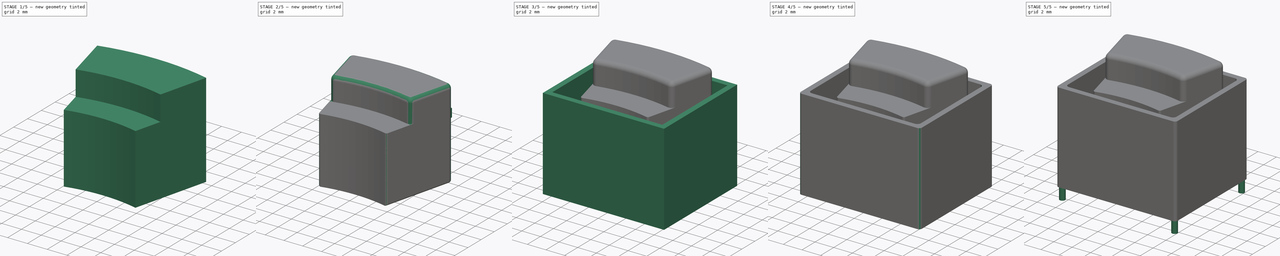
[diagram: build sequence overview — one tinted view per stage of 5, left to right]
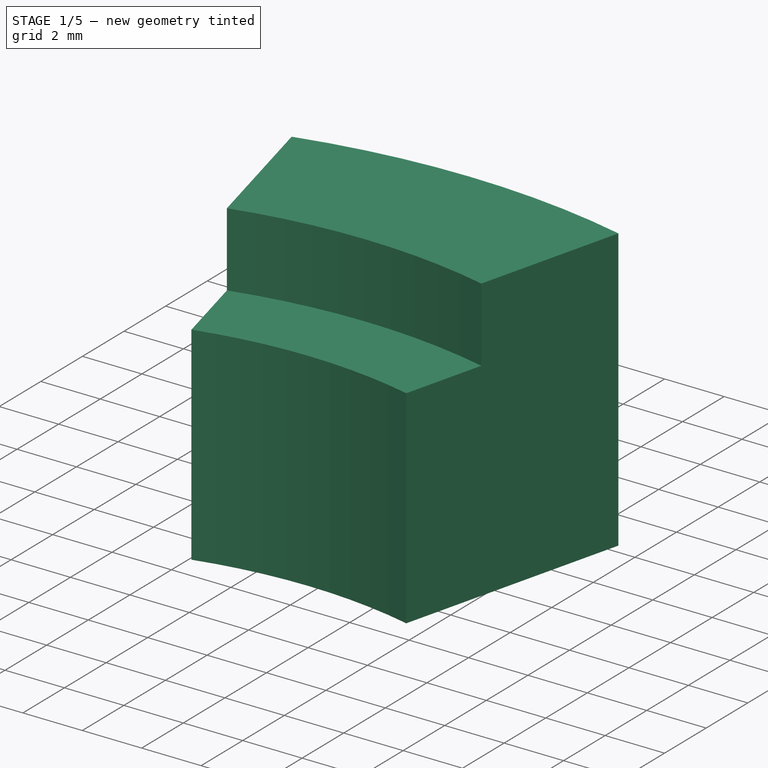
[diagram: stage 1 of 5 — iso view after this stage's code; geometry added in this stage tinted green]
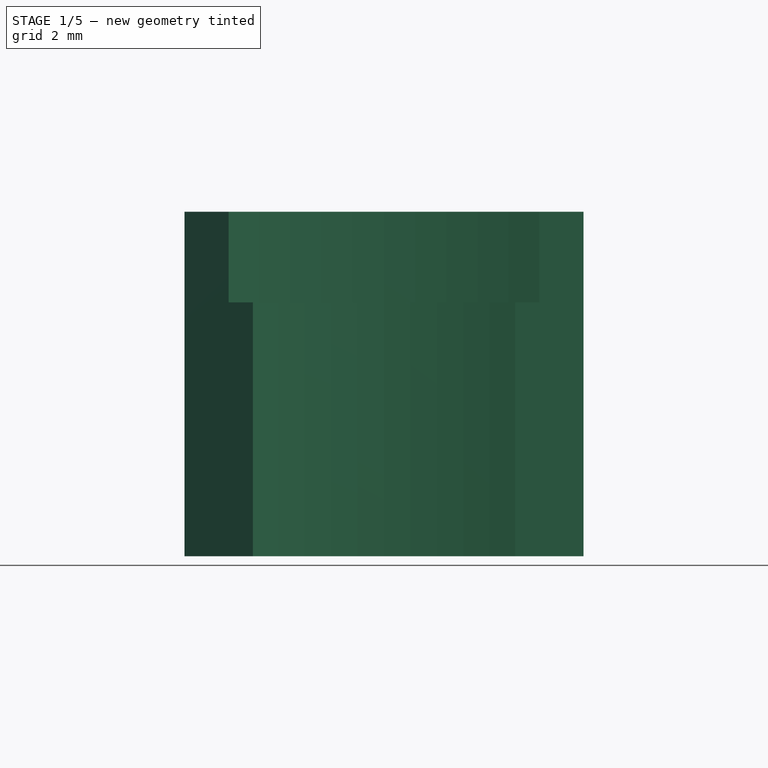
[diagram: stage 1 of 5 — front view after this stage's code; geometry added in this stage tinted green]
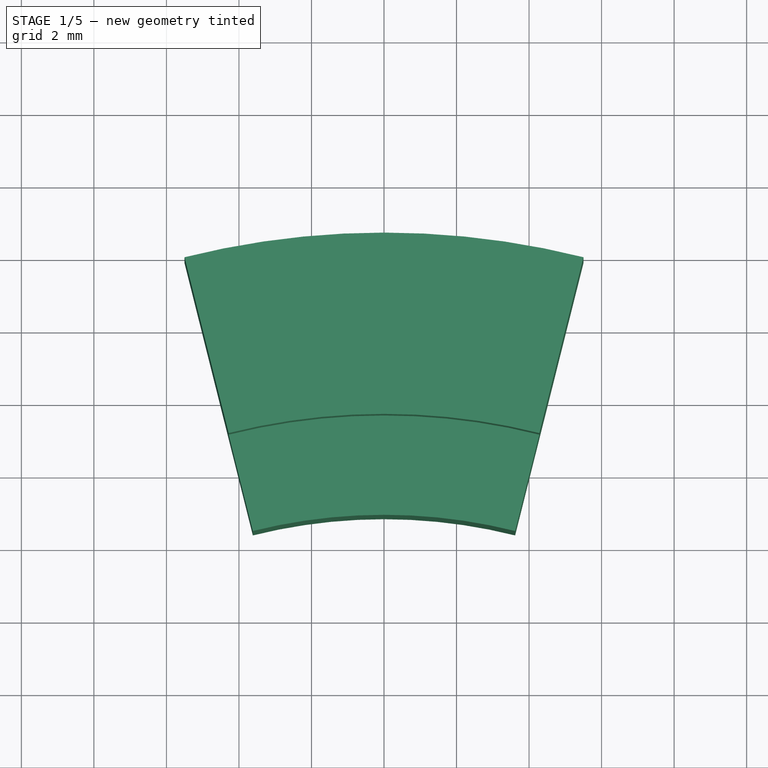
[diagram: stage 1 of 5 — top view after this stage's code; geometry added in this stage tinted green]
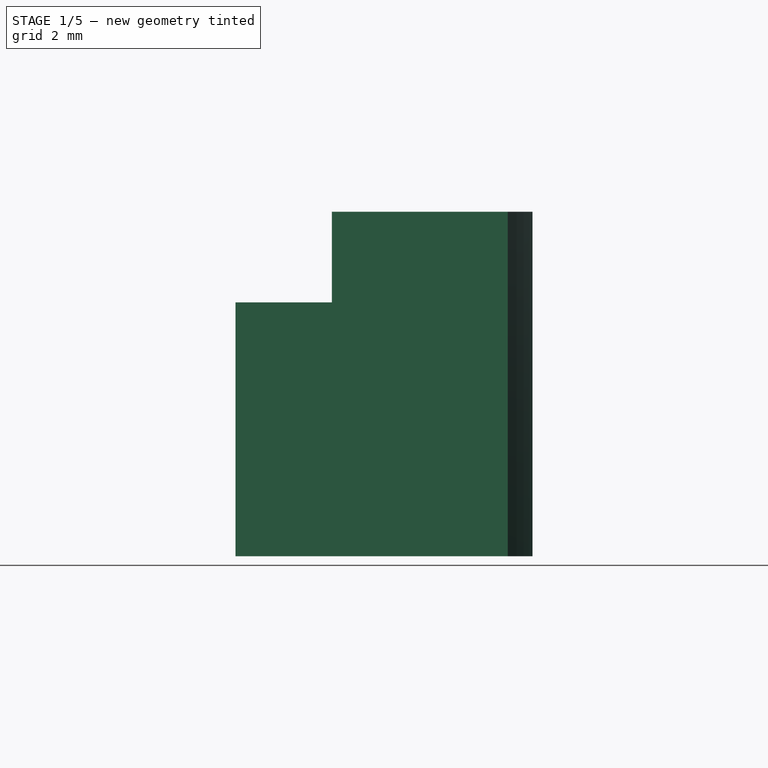
[diagram: stage 1 of 5 — right view after this stage's code; geometry added in this stage tinted green]
FCSTD DOCUMENT  (FreeCAD 0.18R16146 (Git))
Label: LED_switch_circ
License: All rights reserved
LicenseURL: http://en.wikipedia.org/wiki/All_rights_reserved
objects: Drawing::FeatureViewPython×18, Sketcher::SketchObject×7, PartDesign::Fillet×7, PartDesign::Pad×4, Drawing::FeatureViewPart×4, PartDesign::Pocket×3, Part::Feature×2, PartDesign::Plane×2, PartDesign::Body×2, PartDesign::Mirrored×1, App::DocumentObjectGroup×1, Drawing::FeaturePage×1
note: 35 computed .brp shape members not serialized (recipe doc carries the construction recipe); baked Part::Feature solids carry a one-line shape summary decoded from their .brp

FEATURE [Part::Feature] Part__Feature  label="LED_WS2812_PLCC6_50x50mm_P16mm"
  shape: bbox 5.4 x 5 x 1.85 mm, 94 faces (baked)
FEATURE [Part::Feature] Part__Feature001  label="SW_SPST_CK_RS282G05A3"
  Placement = pos=(0,-4.5,0) rot=(0,0,1;0rad)
  shape: bbox 8 x 3.5 x 2.5 mm, 109 faces (baked)
FEATURE [PartDesign::Plane] DatumPlane  label="UnterkanteFaceplate"
  Length = 24
  MapMode = 2
  Placement = pos=(0,0,10) rot=(0,0,1;0rad)
  ResizeMode = 0
  Width = 24
FEATURE [Sketcher::SketchObject] Sketch
  MapMode = 5
  Placement = pos=(0,0,10) rot=(0,0,1;0rad)
  Support = -> [DatumPlane]
  sketch-geometry (11):
    g0: ArcOfCircle CenterX=0 CenterY=-20 CenterZ=0 NormalX=0 NormalY=0 NormalZ=1 AngleXU=0 Radius=22.6 StartAngle=1.32496 EndAngle=1.81663
    g1: LineSegment [constr] StartX=-5.5 StartY=1.92054 StartZ=0 EndX=0 EndY=-20 EndZ=0
    g2: LineSegment [constr] StartX=0 StartY=-20 StartZ=0 EndX=5.5 EndY=1.92054 EndZ=0
    g3: GeomPoint X=0 Y=2.6 Z=0
    g4: LineSegment [constr] StartX=0 StartY=0 StartZ=0 EndX=0 EndY=-20 EndZ=0
    g5: ArcOfCircle CenterX=0 CenterY=-20 CenterZ=0 NormalX=0 NormalY=0 NormalZ=1 AngleXU=0 Radius=14.86 StartAngle=1.32496 EndAngle=1.81663
    g6: LineSegment [constr] StartX=0 StartY=0 StartZ=0 EndX=5.5 EndY=1.92054 EndZ=0
    g7: LineSegment [constr] StartX=-5.5 StartY=1.92054 StartZ=0 EndX=0 EndY=0 EndZ=0
    g8: LineSegment StartX=-5.5 StartY=1.92054 StartZ=0 EndX=-3.61637 EndY=-5.58676 EndZ=0
    g9: LineSegment StartX=3.61637 StartY=-5.58676 StartZ=0 EndX=5.5 EndY=1.92054 EndZ=0
    g10: GeomPoint X=0 Y=-5.14 Z=0
  constraints (28):
    c: DistanceX(g0,g0) = 11
    c: Coincident(g1,g0)
    c: Coincident(g2,g0)
    c: Coincident(g2,g0)
    c: Coincident(g1,g0)
    c: PointOnObject(g0,g-2)
    c: PointOnObject(g3,g0)
    c: PointOnObject(g3,g-2)
    c: Equal(g1,g2)
    c: Coincident(g4,g-1)
    c: Coincident(g4,g0)
    c: DistanceY(g4,g4) = 20
    c: PointOnObject(g5,g1)
    c: PointOnObject(g5,g2)
    c: Coincident(g6,g-1)
    c: Coincident(g6,g0)
    c: Coincident(g7,g0)
    c: Coincident(g7,g-1)
    c: Equal(g7,g6)
    c: Coincident(g8,g5)
    c: Coincident(g9,g5)
    c: Coincident(g9,g0)
    c: Coincident(g8,g0)
    c: DistanceY(g-1,g3) = 2.6
    c: PointOnObject(g10,g4)
    c: PointOnObject(g10,g5)
    c: DistanceY(g10,g3) = 7.74
    c: Coincident(g5,g0)
FEATURE [PartDesign::Pad] Pad  label="Körper"
  Length = 2
  Length2 = 7.5
  Placement = pos=(0,0,10) rot=(0,0,1;0rad)
  Profile = -> Sketch
  Reversed = true
  Type = 4
FEATURE [Sketcher::SketchObject] Sketch001
  ExternalGeometry = -> [Pad]
  MapMode = 5
  Placement = pos=(0,0,2.5) rot=(1,0,0;3.14159rad)
  Support = -> [Pad]
  sketch-geometry (13):
    g0: ArcOfCircle CenterX=2.1e-15 CenterY=17.8 CenterZ=0 NormalX=0 NormalY=0 NormalZ=1 AngleXU=0 Radius=20 StartAngle=4.45979 EndAngle=4.96499
    g1: LineSegment StartX=-4.99847 StartY=-1.56531 StartZ=0 EndX=-3.30948 EndY=5.16628 EndZ=0
    g2: LineSegment StartX=3.30948 StartY=5.16628 StartZ=0 EndX=4.99847 EndY=-1.56531 EndZ=0
    g3: LineSegment [constr] StartX=-3.61637 StartY=5.58676 StartZ=0 EndX=3.61637 EndY=5.58676 EndZ=0
    g4: GeomPoint X=0 Y=-2.2 Z=0
    g5: GeomPoint X=0 Y=-2.6 Z=0
    g6: LineSegment [constr] StartX=4.99847 StartY=-1.56531 StartZ=0 EndX=5.38645 EndY=-1.46797 EndZ=0
    g7: LineSegment [constr] StartX=-4.99847 StartY=-1.56531 StartZ=0 EndX=-5.38645 EndY=-1.46797 EndZ=0
    g8: ArcOfCircle CenterX=2.1e-15 CenterY=17.8 CenterZ=0 NormalX=0 NormalY=0 NormalZ=1 AngleXU=0 Radius=13.06 StartAngle=4.45619 EndAngle=4.96859
    g9: GeomPoint X=0 Y=5.14 Z=0
    g10: GeomPoint X=0 Y=4.74 Z=0
    g11: LineSegment [constr] StartX=-3.61637 StartY=5.58676 StartZ=0 EndX=-3.30948 EndY=5.16628 EndZ=0
    g12: LineSegment [constr] StartX=3.61637 StartY=5.58676 StartZ=0 EndX=3.30948 EndY=5.16628 EndZ=0
  constraints (33):
    c: Coincident(g1,g0)
    c: Coincident(g2,g0)
    c: Parallel(g2,g-5)
    c: Parallel(g1,g-4)
    c: Coincident(g3,g-4)
    c: Coincident(g3,g-5)
    c: PointOnObject(g4,g0)
    c: PointOnObject(g4,g-2)
    c: PointOnObject(g5,g-2)
    c: DistanceY(g5,g4) = 0.4
    c: PointOnObject(g6,g-5)
    c: Perpendicular(g2,g6)
    c: Distance(g6,g6) = 0.4
    c: PointOnObject(g7,g-4)
    c: Perpendicular(g1,g7)
    c: Distance(g7,g7) = 0.4
    c: DistanceY(g4,g0) = 20
    c: Coincident(g8,g1)
    c: Coincident(g8,g2)
    c: Coincident(g8,g0)
    c: PointOnObject(g9,g-3)
    c: PointOnObject(g10,g8)
    c: PointOnObject(g9,g-2)
    c: PointOnObject(g10,g-2)
    c: DistanceY(g10,g9) = 0.4
    c: Coincident(g7,g0)
    c: Coincident(g6,g0)
    c: Coincident(g11,g3)
    c: Coincident(g11,g1)
    c: Coincident(g12,g3)
    c: Coincident(g12,g2)
    c: Equal(g12,g11)
    c: PointOnObject(g5,g-6)
FEATURE [PartDesign::Pocket] Pocket  label="Aushöhlung"
  BaseFeature = -> Pad
  Length = 6.6
  Length2 = 100
  Placement = pos=(0,0,10) rot=(0,0,1;0rad)
  Profile = -> Sketch001
  Type = 0
FEATURE [Sketcher::SketchObject] Sketch002
  ExternalGeometry = -> [Pocket]
  MapMode = 5
  Placement = pos=(0,0,12) rot=(0,0,1;0rad)
  Support = -> [Pocket]
  sketch-geometry (7):
    g0: ArcOfCircle CenterX=-6e-15 CenterY=-20 CenterZ=0 NormalX=0 NormalY=0 NormalZ=1 AngleXU=0 Radius=17.6 StartAngle=1.32496 EndAngle=1.81663
    g1: GeomPoint X=0 Y=2.6 Z=0
    g2: GeomPoint X=0 Y=-2.4 Z=0
    g3: GeomPoint X=0 Y=-5.14 Z=0
    g4: ArcOfCircle CenterX=1.7e-15 CenterY=-20 CenterZ=0 NormalX=0 NormalY=0 NormalZ=1 AngleXU=0 Radius=14.86 StartAngle=1.32496 EndAngle=1.81663
    g5: LineSegment StartX=-4.28319 StartY=-2.92914 StartZ=0 EndX=-3.61637 EndY=-5.58676 EndZ=0
    g6: LineSegment StartX=4.28319 StartY=-2.92914 StartZ=0 EndX=3.61637 EndY=-5.58676 EndZ=0
  constraints (18):
    c: PointOnObject(g0,g-3)
    c: PointOnObject(g0,g-5)
    c: DistanceY(g0,g-1) = 20
    c: PointOnObject(g1,g-2)
    c: PointOnObject(g3,g-2)
    c: Coincident(g4,g-3)
    c: Coincident(g4,g-5)
    c: PointOnObject(g1,g-4)
    c: PointOnObject(g2,g0)
    c: PointOnObject(g2,g-2)
    c: PointOnObject(g3,g-6)
    c: PointOnObject(g3,g4)
    c: Coincident(g5,g0)
    c: Coincident(g5,g4)
    c: Coincident(g6,g0)
    c: Coincident(g6,g4)
    c: DistanceY(g2,g1) = 5
    c: Equal(g6,g5)
FEATURE [PartDesign::Pocket] Pocket001
  BaseFeature = -> Pocket
  Length = 2.5
  Length2 = 100
  Placement = pos=(0,0,10) rot=(0,0,1;0rad)
  Profile = -> Sketch002
  Type = 0
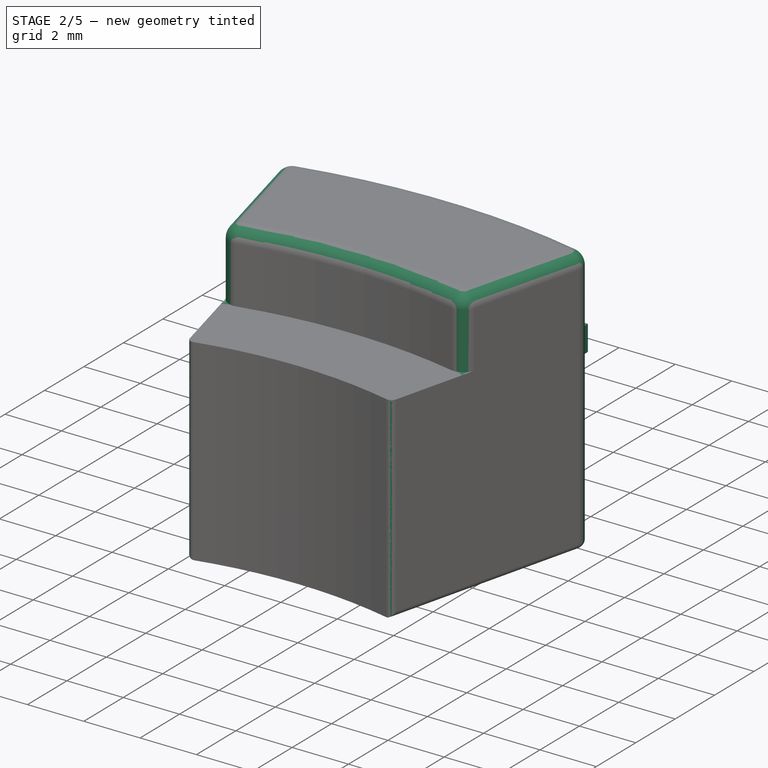
[diagram: stage 2 of 5 — iso view after this stage's code; geometry added in this stage tinted green]
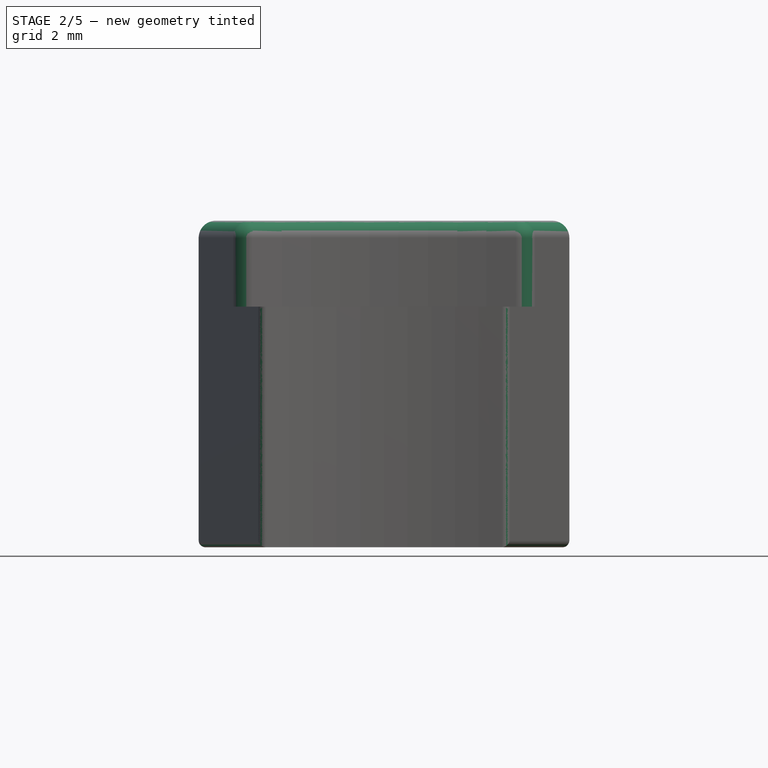
[diagram: stage 2 of 5 — front view after this stage's code; geometry added in this stage tinted green]
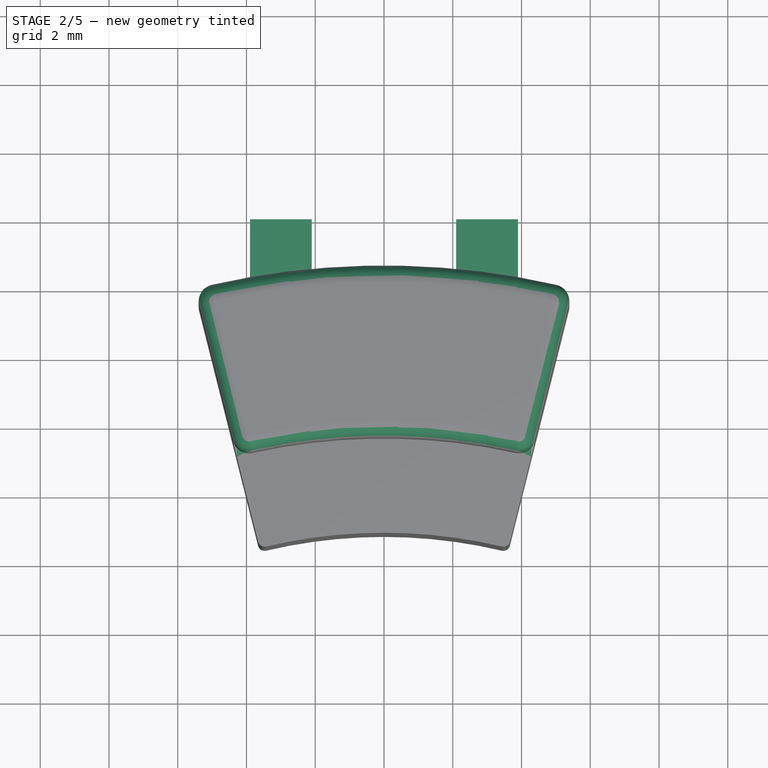
[diagram: stage 2 of 5 — top view after this stage's code; geometry added in this stage tinted green]
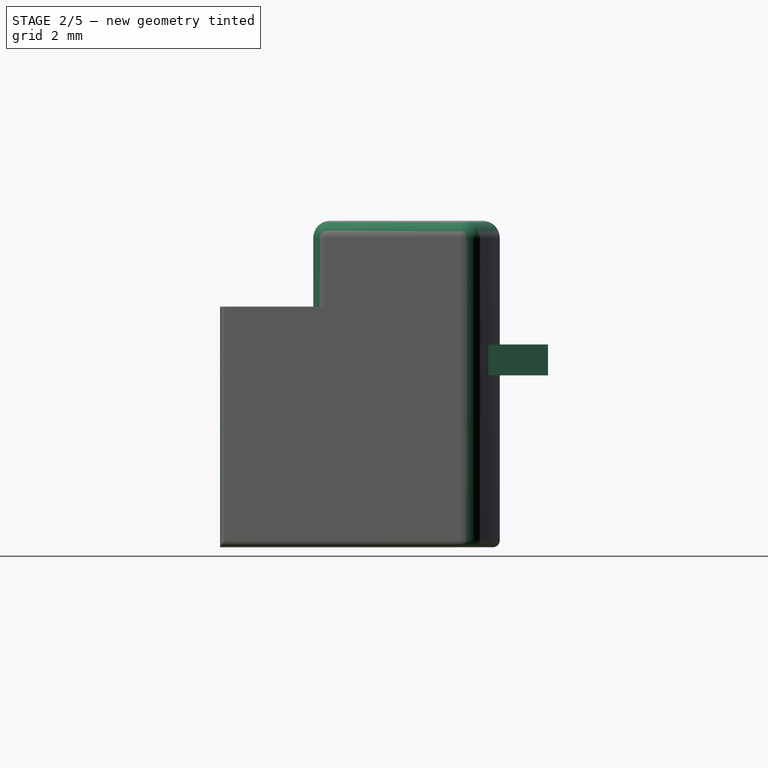
[diagram: stage 2 of 5 — right view after this stage's code; geometry added in this stage tinted green]
FEATURE [PartDesign::Body] Body001  label="frame"
  Group = -> [Sketch005,Pad003,Fillet005,Fillet006,Sketch006,Pocket002,Mirrored001,Fillet007,Sketch007,Pad004]
  Origin = -> Origin001
  Tip = -> Pad004
FEATURE [PartDesign::Plane] DatumPlane001
  Length = 24
  MapMode = 2
  Placement = pos=(0,0,7.95) rot=(0,0,1;0rad)
  ResizeMode = 0
  Width = 24
FEATURE [Sketcher::SketchObject] Sketch008
  ExternalGeometry = -> [Pocket001]
  MapMode = 5
  Placement = pos=(0,0,7.95) rot=(0,0,1;0rad)
  Support = -> [DatumPlane001]
  sketch-geometry (13):
    g0: LineSegment StartX=-3.9 StartY=2.26095 StartZ=0 EndX=-3.9 EndY=4 EndZ=0
    g1: LineSegment StartX=-2.1 StartY=4 StartZ=0 EndX=-2.1 EndY=2.50222 EndZ=0
    g2: ArcOfCircle [constr] CenterX=4e-16 CenterY=-20 CenterZ=0 NormalX=0 NormalY=0 NormalZ=1 AngleXU=0 Radius=22.6 StartAngle=1.32496 EndAngle=1.81663
    g3: LineSegment StartX=-3.9 StartY=4 StartZ=0 EndX=-3 EndY=4 EndZ=0
    g4: LineSegment StartX=-3 StartY=4 StartZ=0 EndX=-2.1 EndY=4 EndZ=0
    g5: LineSegment StartX=-3.9 StartY=2.26095 StartZ=0 EndX=-2.1 EndY=2.50222 EndZ=0
    g6: LineSegment StartX=2.1 StartY=2.50222 StartZ=0 EndX=2.1 EndY=4 EndZ=0
    g7: LineSegment StartX=3.9 StartY=4 StartZ=0 EndX=3.9 EndY=2.26095 EndZ=0
    g8: LineSegment StartX=3.9 StartY=2.26095 StartZ=0 EndX=2.1 EndY=2.50222 EndZ=0
    g9: LineSegment StartX=2.1 StartY=4 StartZ=0 EndX=3 EndY=4 EndZ=0
    g10: LineSegment StartX=3 StartY=4 StartZ=0 EndX=3.9 EndY=4 EndZ=0
    g11: LineSegment [constr] StartX=-3.9 StartY=2.26095 StartZ=0 EndX=0 EndY=0 EndZ=0
    g12: LineSegment [constr] StartX=0 StartY=0 StartZ=0 EndX=3.9 EndY=2.26095 EndZ=0
  constraints (37):
    c: PointOnObject(g0,g-3)
    c: Vertical(g0)
    c: PointOnObject(g1,g-3)
    c: Vertical(g1)
    c: Coincident(g2,g-3)
    c: Coincident(g2,g-3)
    c: Coincident(g2,g-3)
    c: Horizontal(g3)
    c: Coincident(g3,g4)
    c: Coincident(g4,g1)
    c: Horizontal(g4)
    c: Equal(g4,g3)
    c: Coincident(g3,g0)
    c: DistanceX(g0,g1) = 1.8
    c: DistanceY(g-1,g1) = 4
    c: Coincident(g5,g0)
    c: Coincident(g5,g1)
    c: PointOnObject(g6,g2)
    c: Vertical(g6)
    c: PointOnObject(g7,g2)
    c: Vertical(g7)
    c: Coincident(g7,g8)
    c: Coincident(g8,g6)
    c: Equal(g6,g1)
    c: Coincident(g6,g9)
    c: Horizontal(g9)
    c: Coincident(g9,g10)
    c: Coincident(g10,g7)
    c: Horizontal(g10)
    c: Equal(g9,g10)
    c: DistanceX(g3,g9) = 6
    c: Equal(g9,g3)
    c: Coincident(g11,g0)
    c: Coincident(g11,g-1)
    c: Coincident(g12,g-1)
    c: Coincident(g12,g7)
    c: Equal(g11,g12)
FEATURE [PartDesign::Pad] Pad005
  BaseFeature = -> Pocket001
  Length = 0.45
  Length2 = 0.45
  Placement = pos=(0,0,10) rot=(0,0,1;0rad)
  Profile = -> Sketch008
  Type = 4
FEATURE [PartDesign::Fillet] Fillet  label="FilletObenAußen"
  Base = -> Pad005 [Edge24,Edge3,Edge14,Edge25,Edge4,Edge2,Edge15,Edge26]
  BaseFeature = -> Pad005
  Placement = pos=(0,0,10) rot=(0,0,1;0rad)
  Radius = 0.5
FEATURE [PartDesign::Fillet] Fillet008
  Base = -> Fillet [Edge19,Edge3,Edge11,Edge1]
  BaseFeature = -> Fillet
  Placement = pos=(0,0,10) rot=(0,0,1;0rad)
  Radius = 0.2
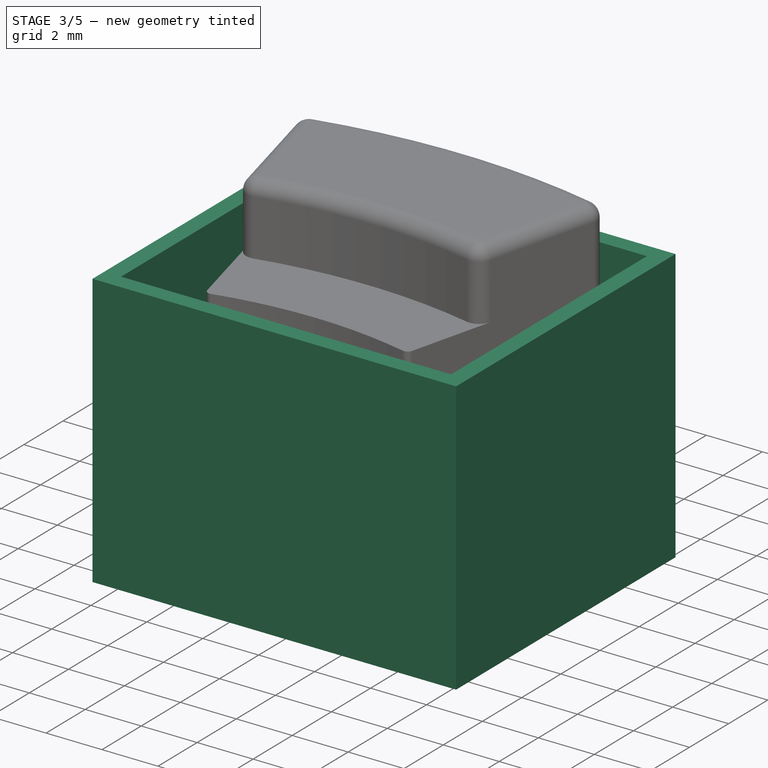
[diagram: stage 3 of 5 — iso view after this stage's code; geometry added in this stage tinted green]
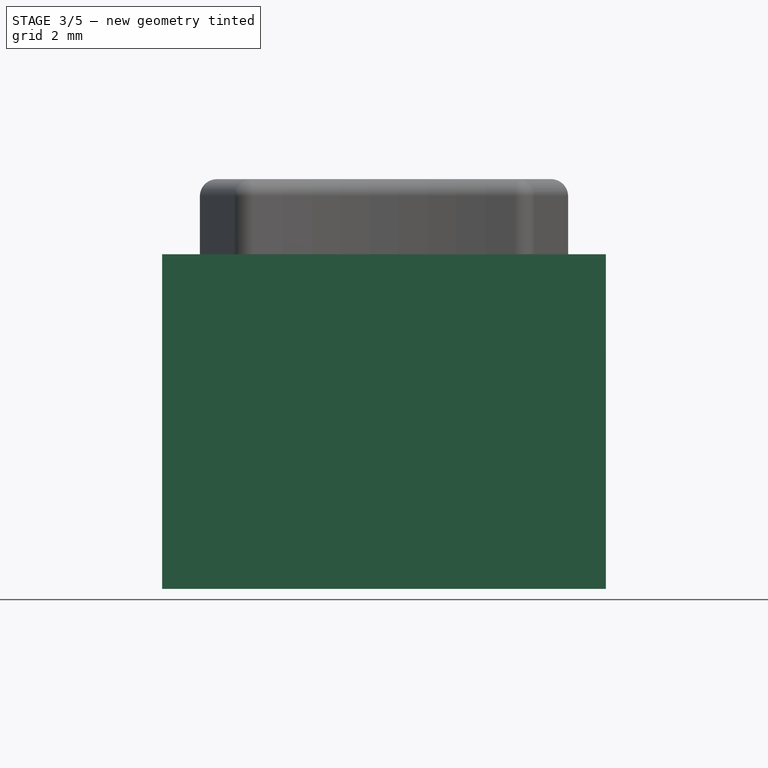
[diagram: stage 3 of 5 — front view after this stage's code; geometry added in this stage tinted green]
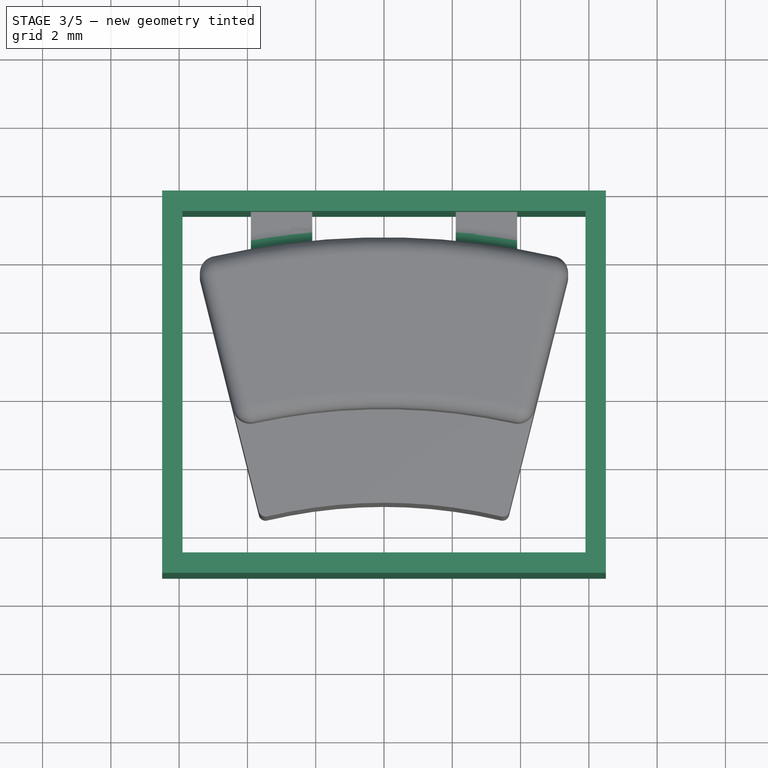
[diagram: stage 3 of 5 — top view after this stage's code; geometry added in this stage tinted green]
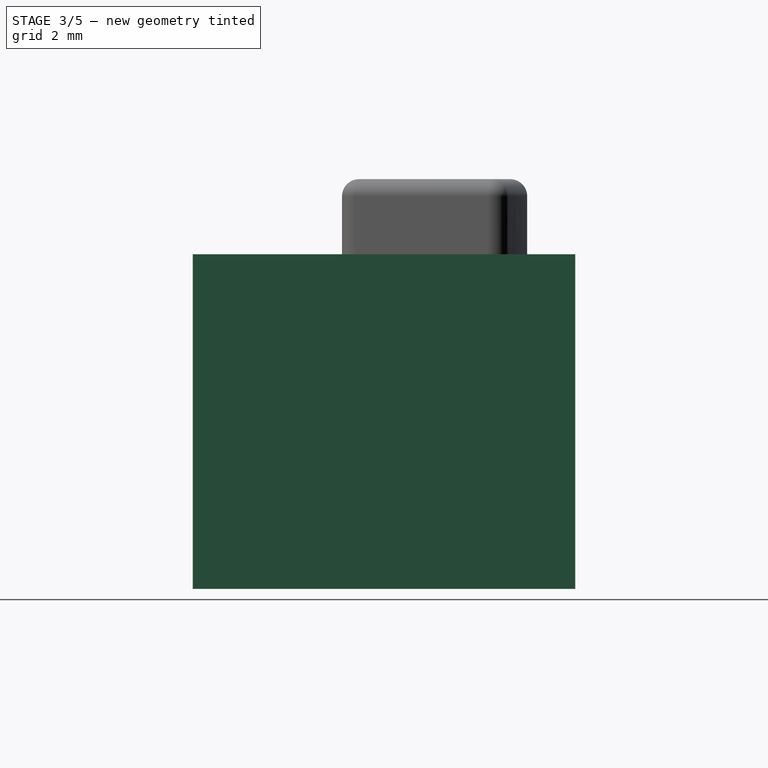
[diagram: stage 3 of 5 — right view after this stage's code; geometry added in this stage tinted green]
FEATURE [Sketcher::SketchObject] Sketch005
  MapMode = 5
  Support = -> [XY_Plane001]
  sketch-geometry (9):
    g0: LineSegment StartX=-5.9 StartY=3.4 StartZ=0 EndX=5.9 EndY=3.4 EndZ=0
    g1: LineSegment StartX=5.9 StartY=3.4 StartZ=0 EndX=5.9 EndY=-6.6 EndZ=0
    g2: LineSegment StartX=5.9 StartY=-6.6 StartZ=0 EndX=-5.9 EndY=-6.6 EndZ=0
    g3: LineSegment StartX=-5.9 StartY=-6.6 StartZ=0 EndX=-5.9 EndY=3.4 EndZ=0
    g4: GeomPoint X=0 Y=-1.6 Z=0
    g5: LineSegment StartX=-6.5 StartY=4 StartZ=0 EndX=6.5 EndY=4 EndZ=0
    g6: LineSegment StartX=6.5 StartY=4 StartZ=0 EndX=6.5 EndY=-7.2 EndZ=0
    g7: LineSegment StartX=6.5 StartY=-7.2 StartZ=0 EndX=-6.5 EndY=-7.2 EndZ=0
    g8: LineSegment StartX=-6.5 StartY=-7.2 StartZ=0 EndX=-6.5 EndY=4 EndZ=0
  constraints (24):
    c: Coincident(g0,g1)
    c: Coincident(g1,g2)
    c: Coincident(g2,g3)
    c: Coincident(g3,g0)
    c: Horizontal(g0)
    c: Horizontal(g2)
    c: Vertical(g1)
    c: Vertical(g3)
    c: DistanceX(g0,g0) = 11.8
    c: DistanceY(g1,g1) = 10
    c: PointOnObject(g4,g-2)
    c: Symmetric(g0,g1,g4)
    c: DistanceY(g4,g-1) = 1.6
    c: Coincident(g5,g6)
    c: Coincident(g6,g7)
    c: Coincident(g7,g8)
    c: Coincident(g8,g5)
    c: Horizontal(g5)
    c: Horizontal(g7)
    c: Vertical(g6)
    c: Vertical(g8)
    c: Symmetric(g5,g6,g4)
    c: DistanceY(g0,g5) = 0.6
    c: DistanceX(g0,g5) = 0.6
FEATURE [PartDesign::Pad] Pad003  label="frame001"
  Length = 9.8
  Length2 = 100
  Profile = -> Sketch005
  Type = 0
FEATURE [PartDesign::Fillet] Fillet009
  Base = -> Fillet008 [Edge97,Edge95,Edge100,Edge99,Edge98,Edge96,Edge94,Edge93]
  BaseFeature = -> Fillet008
  Placement = pos=(0,0,10) rot=(0,0,1;0rad)
  Radius = 0.2
FEATURE [PartDesign::Fillet] Fillet010
  Base = -> Fillet009 [Edge91,Edge89,Edge85,Edge87]
  BaseFeature = -> Fillet009
  Placement = pos=(0,0,10) rot=(0,0,1;0rad)
  Radius = 0.5
FEATURE [PartDesign::Body] Body  label="Stößel"
  Group = -> [DatumPlane,Sketch,Pad,Sketch001,Pocket,Sketch002,Pocket001,DatumPlane001,Sketch008,Pad005,Fillet,Fillet008,Fillet009,Fillet010]
  Origin = -> Origin
  Tip = -> Fillet010
FEATURE [App::DocumentObjectGroup] Gruppe
  Group = -> [Part__Feature,Part__Feature001,Body,Body001]
FEATURE [Drawing::FeatureViewPart] Ortho001  label="Rechts"
  Direction = (1,0,0)
  HiddenWidth = 0.15
  LineWidth = 0.35
  Rotation = -90
  Scale = 5
  ShowHiddenLines = true
  ShowSmoothLines = true
  Source = -> Body
  Tolerance = 0.05
  ViewResult = <blob: 12341 chars omitted>
  Visible = true
  X = 152.47
  Y = 149.647
FEATURE [Drawing::FeatureViewPart] Ortho002  label="Hinten"
  Direction = (0,1,0)
  HiddenWidth = 0.15
  LineWidth = 0.35
  Rotation = -90
  Scale = 5
  ShowHiddenLines = false
  ShowSmoothLines = true
  Source = -> Body
  Tolerance = 0.05
  ViewResult = <blob: 4261 chars omitted>
  Visible = true
  X = 229.735
  Y = 149.647
FEATURE [Drawing::FeatureViewPart] Ortho003  label="Draufsicht"
  Direction = (0,0,1)
  HiddenWidth = 0.15
  LineWidth = 0.35
  Rotation = 0
  Scale = 5
  ShowHiddenLines = false
  ShowSmoothLines = false
  Source = -> Body
  Tolerance = 0.05
  ViewResult = <blob: 2900 chars omitted>
  Visible = true
  X = 67.265
  Y = 45.8532
FEATURE [Drawing::FeatureViewPython] centerLines001  # drawing view (typed FeaturePython)
  Rotation = 0
  ViewResult = <g transform="scale(5.000000,5.000000)" stroke="rgb(40,40,40)"  stroke-width="0.060000" > <path d="M 13.453000,16.199998 L 13.453000,15.799998 M 13.453000,15.399998 L 13.453000,14.199998 M 13.453000,13.799998 L 13.453000,13.399998 M 13.453000,12.999998 L 13.453000,11.799998 M 13.453000,11.399998 L 13.453000,10.999998 M 13.453000,10.599998 L 13.453000,9.399998 M 13.453000,8.999998 L 13.453000,8.599998 M 13.453000,8.199998 L 13.453000,6.999998 M 13.453000,6.599998 L 13.453000,6.199998 M 13.453000,5.799998 L 13.453000,5.119438 "/>\n<path d="M 13.453000,16.199998 L 13.453000,16.599998 M 13.453000,16.999998 L 13.453000,17.738403 "/> </g> 
  Visible = true
  X = 0
  Y = 0
  centerLine_color = rgb(40,40,40)
  centerLine_len_dash = 6
  centerLine_len_dot = 2
  centerLine_len_gap = 2
  centerLine_width = 0.3
  click1_x = 70.7291
  click1_y = 25.5972
  click2_x = 74.9953
  click2_y = 88.692
FEATURE [Drawing::FeatureViewPython] rad001  # drawing view (typed FeaturePython)
  Rotation = 0
  ViewResult = <g>  <circle cx ="67.265000" cy ="145.853222" r="0.500000" stroke="none" fill="rgb(57,57,57)" /> \n<line x1="79.897660" y1="80.833230" x2="67.265000" y2="145.853222" style="stroke:rgb(57,57,57);stroke-width:0.30" />\n<polygon points="81.435681,72.917074 79.980034,75.690355 80.863514,75.862006 81.746993,76.033656" style="fill:rgb(57,57,57);stroke:rgb(57,57,57);stroke-width:0" />\n<line x1="79.897660" y1="80.833230" x2="87.756446" y2="80.833230" style="stroke:rgb(57,57,57);stroke-width:0.30" />\n<text x="83.827053" y="78.833230" font-family="Verdana" font-size="2" fill="rgb(40,40,40)" text-anchor="middle" transform="rotate(0.000000 83.827053,78.833230)" >R14.86</text> </g>
  Visible = true
  X = 0
  Y = 0
  arrowL1 = 3
  arrowL2 = 0
  arrowW = 1.8
  arrow_scheme = 0
  autoPlaceOffset = 2
  autoPlaceText = true
  centerPointDia = 1
  click1_x = 79.8977
  click1_y = 80.8332
  click2_x = 87.7564
  click2_y = 81.5817
  click3_x = 87.7564
  click3_y = 81.5817
  comma_decimal_place = false
  lineColor = rgb(57,57,57)
  strokeWidth = 0.3
  textFormat_radial = R%(value)3.3f
  textRenderer_color = rgb(40,40,40)
  textRenderer_family = Verdana
  textRenderer_size = 2
  unit_custom_scale = 1
  unit_scheme = 0
FEATURE [Drawing::FeatureViewPython] dim001  # drawing view (typed FeaturePython)
  Rotation = 0
  ViewResult = <g> \n  <line x1="125.770000" y1="137.147000" x2="116.882366" y2="137.147000" style="stroke:rgb(57,57,57);stroke-width:0.30" />\n<line x1="125.770000" y1="102.147000" x2="116.882366" y2="102.147000" style="stroke:rgb(57,57,57);stroke-width:0.30" />\n<line x1="117.382366" y1="137.147000" x2="117.382366" y2="102.147000" style="stroke:rgb(57,57,57);stroke-width:0.30" /> \n  <polygon points="117.382366,102.147000 116.482366,105.147000 117.382366,105.147000 118.282366,105.147000" style="fill:rgb(57,57,57);stroke:rgb(57,57,57);stroke-width:0" /><polygon points="117.382366,137.147000 118.282366,134.147000 117.382366,134.147000 116.482366,134.147000" style="fill:rgb(57,57,57);stroke:rgb(57,57,57);stroke-width:0" /> \n  <text x="115.382366" y="119.647000" font-family="Verdana" font-size="2" fill="rgb(40,40,40)" text-anchor="middle" transform="rotate(-90.000000 115.382366,119.647000)" >7</text> </g>
  Visible = true
  X = 0
  Y = 0
  arrowL1 = 3
  arrowL2 = 0
  arrowW = 1.8
  arrow_scheme = 0
  autoPlaceOffset = 2
  autoPlaceText = true
  click1_x = 117.382
  click1_y = 112.795
  click2_x = 117.382
  click2_y = 112.795
  comma_decimal_place = false
  dimension_line_overshoot = 0.5
  gap_datum_points = 1
  halfDimension_linear = false
  lineColor = rgb(57,57,57)
  strokeWidth = 0.3
  textFormat_linear = %(value)3.3f
  textRenderer_color = rgb(40,40,40)
  textRenderer_family = Verdana
  textRenderer_size = 2
  unit_custom_scale = 1
  unit_scheme = 0
FEATURE [Drawing::FeatureViewPython] dim002  # drawing view (typed FeaturePython)
  Rotation = 0
  ViewResult = <g> \n  <line x1="123.769900" y1="137.146900" x2="108.728031" y2="137.146900" style="stroke:rgb(57,57,57);stroke-width:0.30" />\n<line x1="141.970000" y1="89.647000" x2="108.728031" y2="89.647000" style="stroke:rgb(57,57,57);stroke-width:0.30" />\n<line x1="109.228031" y1="137.146900" x2="109.228031" y2="89.647000" style="stroke:rgb(57,57,57);stroke-width:0.30" /> \n  <polygon points="109.228031,89.647000 108.328031,92.647000 109.228031,92.647000 110.128031,92.647000" style="fill:rgb(57,57,57);stroke:rgb(57,57,57);stroke-width:0" /><polygon points="109.228031,137.146900 110.128031,134.146900 109.228031,134.146900 108.328031,134.146900" style="fill:rgb(57,57,57);stroke:rgb(57,57,57);stroke-width:0" /> \n  <text x="107.228031" y="113.396950" font-family="Verdana" font-size="2" fill="rgb(40,40,40)" text-anchor="middle" transform="rotate(-90.000000 107.228031,113.396950)" >9.5</text> </g>
  Visible = true
  X = 0
  Y = 0
  arrowL1 = 3
  arrowL2 = 0
  arrowW = 1.8
  arrow_scheme = 0
  autoPlaceOffset = 2
  autoPlaceText = true
  click1_x = 109.228
  click1_y = 113.38
  click2_x = 109.228
  click2_y = 113.38
  comma_decimal_place = false
  dimension_line_overshoot = 0.5
  gap_datum_points = 1
  halfDimension_linear = false
  lineColor = rgb(57,57,57)
  strokeWidth = 0.3
  textFormat_linear = %(value)3.3f
  textRenderer_color = rgb(40,40,40)
  textRenderer_family = Verdana
  textRenderer_size = 2
  unit_custom_scale = 1
  unit_scheme = 0
FEATURE [Drawing::FeatureViewPython] dim003  # drawing view (typed FeaturePython)
  Rotation = 0
  ViewResult = <g> \n  <line x1="165.470000" y1="137.147000" x2="177.123757" y2="137.147000" style="stroke:rgb(57,57,57);stroke-width:0.30" />\n<line x1="173.470000" y1="112.147000" x2="177.123757" y2="112.147000" style="stroke:rgb(57,57,57);stroke-width:0.30" />\n<line x1="176.623757" y1="137.147000" x2="176.623757" y2="112.147000" style="stroke:rgb(57,57,57);stroke-width:0.30" /> \n  <polygon points="176.623757,112.147000 175.723757,115.147000 176.623757,115.147000 177.523757,115.147000" style="fill:rgb(57,57,57);stroke:rgb(57,57,57);stroke-width:0" /><polygon points="176.623757,137.147000 177.523757,134.147000 176.623757,134.147000 175.723757,134.147000" style="fill:rgb(57,57,57);stroke:rgb(57,57,57);stroke-width:0" /> \n  <text x="174.623757" y="124.647000" font-family="Verdana" font-size="2" fill="rgb(40,40,40)" text-anchor="middle" transform="rotate(-90.000000 174.623757,124.647000)" >5</text> </g>
  Visible = true
  X = 0
  Y = 0
  arrowL1 = 3
  arrowL2 = 0
  arrowW = 1.8
  arrow_scheme = 0
  autoPlaceOffset = 2
  autoPlaceText = true
  click1_x = 176.624
  click1_y = 121.776
  click2_x = 176.624
  click2_y = 121.776
  comma_decimal_place = false
  dimension_line_overshoot = 0.5
  gap_datum_points = 1
  halfDimension_linear = false
  lineColor = rgb(57,57,57)
  strokeWidth = 0.3
  textFormat_linear = %(value)3.3f
  textRenderer_color = rgb(40,40,40)
  textRenderer_family = Verdana
  textRenderer_size = 2
  unit_custom_scale = 1
  unit_scheme = 0
FEATURE [Drawing::FeatureViewPython] dim004  # drawing view (typed FeaturePython)
  Rotation = 0
  ViewResult = <g> \n  <line x1="165.470000" y1="137.147000" x2="183.164523" y2="137.147000" style="stroke:rgb(57,57,57);stroke-width:0.30" />\n<line x1="173.470000" y1="107.647000" x2="183.164523" y2="107.647000" style="stroke:rgb(57,57,57);stroke-width:0.30" />\n<line x1="182.664523" y1="137.147000" x2="182.664523" y2="107.647000" style="stroke:rgb(57,57,57);stroke-width:0.30" /> \n  <polygon points="182.664523,107.647000 181.764523,110.647000 182.664523,110.647000 183.564523,110.647000" style="fill:rgb(57,57,57);stroke:rgb(57,57,57);stroke-width:0" /><polygon points="182.664523,137.147000 183.564523,134.147000 182.664523,134.147000 181.764523,134.147000" style="fill:rgb(57,57,57);stroke:rgb(57,57,57);stroke-width:0" /> \n  <text x="180.664523" y="122.397000" font-family="Verdana" font-size="2" fill="rgb(40,40,40)" text-anchor="middle" transform="rotate(-90.000000 180.664523,122.397000)" >5.9</text> </g>
  Visible = true
  X = 0
  Y = 0
  arrowL1 = 3
  arrowL2 = 0
  arrowW = 1.8
  arrow_scheme = 0
  autoPlaceOffset = 2
  autoPlaceText = true
  click1_x = 182.665
  click1_y = 114.019
  click2_x = 182.665
  click2_y = 114.019
  comma_decimal_place = false
  dimension_line_overshoot = 0.5
  gap_datum_points = 1
  halfDimension_linear = false
  lineColor = rgb(57,57,57)
  strokeWidth = 0.3
  textFormat_linear = %(value)3.3f
  textRenderer_color = rgb(40,40,40)
  textRenderer_family = Verdana
  textRenderer_size = 2
  unit_custom_scale = 1
  unit_scheme = 0
FEATURE [Drawing::FeatureViewPython] dim005  # drawing view (typed FeaturePython)
  Rotation = 0
  ViewResult = <g> \n  <line x1="172.470000" y1="106.647000" x2="172.470000" y2="83.315627" style="stroke:rgb(57,57,57);stroke-width:0.30" />\n<line x1="165.470000" y1="91.147000" x2="165.470000" y2="83.315627" style="stroke:rgb(57,57,57);stroke-width:0.30" />\n<line x1="172.470000" y1="83.815627" x2="165.470000" y2="83.815627" style="stroke:rgb(57,57,57);stroke-width:0.30" /> \n  <polygon points="165.470000,83.815627 162.470000,82.915627 162.470000,83.815627 162.470000,84.715627" style="fill:rgb(57,57,57);stroke:rgb(57,57,57);stroke-width:0" /><polygon points="172.470000,83.815627 175.470000,84.715627 175.470000,83.815627 175.470000,82.915627" style="fill:rgb(57,57,57);stroke:rgb(57,57,57);stroke-width:0" /> \n  <text x="168.970000" y="81.815627" font-family="Verdana" font-size="2" fill="rgb(40,40,40)" text-anchor="middle" transform="rotate(0.000000 168.970000,81.815627)" >1.4</text> </g>
  Visible = true
  X = 0
  Y = 0
  arrowL1 = 3
  arrowL2 = 0
  arrowW = 1.8
  arrow_scheme = 0
  autoPlaceOffset = 2
  autoPlaceText = true
  click1_x = 169.141
  click1_y = 83.8156
  click2_x = 169.141
  click2_y = 83.8156
  comma_decimal_place = false
  dimension_line_overshoot = 0.5
  gap_datum_points = 1
  halfDimension_linear = false
  lineColor = rgb(57,57,57)
  strokeWidth = 0.3
  textFormat_linear = %(value)3.3f
  textRenderer_color = rgb(40,40,40)
  textRenderer_family = Verdana
  textRenderer_size = 2
  unit_custom_scale = 1
  unit_scheme = 0
FEATURE [Drawing::FeatureViewPython] dim006  # drawing view (typed FeaturePython)
  Rotation = 0
  ViewResult = <g> \n  <line x1="165.470000" y1="135.147000" x2="165.470000" y2="83.344547" style="stroke:rgb(57,57,57);stroke-width:0.30" />\n<line x1="140.470000" y1="91.147000" x2="140.470000" y2="83.344547" style="stroke:rgb(57,57,57);stroke-width:0.30" />\n<line x1="165.470000" y1="83.844547" x2="140.470000" y2="83.844547" style="stroke:rgb(57,57,57);stroke-width:0.30" /> \n  <polygon points="140.470000,83.844547 143.470000,84.744547 143.470000,83.844547 143.470000,82.944547" style="fill:rgb(57,57,57);stroke:rgb(57,57,57);stroke-width:0" /><polygon points="165.470000,83.844547 162.470000,82.944547 162.470000,83.844547 162.470000,84.744547" style="fill:rgb(57,57,57);stroke:rgb(57,57,57);stroke-width:0" /> \n  <text x="152.970000" y="81.844547" font-family="Verdana" font-size="2" fill="rgb(40,40,40)" text-anchor="middle" transform="rotate(0.000000 152.970000,81.844547)" >5</text> </g>
  Visible = true
  X = 0
  Y = 0
  arrowL1 = 3
  arrowL2 = 0
  arrowW = 1.8
  arrow_scheme = 0
  autoPlaceOffset = 2
  autoPlaceText = true
  click1_x = 148.639
  click1_y = 83.8445
  click2_x = 148.639
  click2_y = 83.8445
  comma_decimal_place = false
  dimension_line_overshoot = 0.5
  gap_datum_points = 1
  halfDimension_linear = false
  lineColor = rgb(57,57,57)
  strokeWidth = 0.3
  textFormat_linear = %(value)3.3f
  textRenderer_color = rgb(40,40,40)
  textRenderer_family = Verdana
  textRenderer_size = 2
  unit_custom_scale = 1
  unit_scheme = 0
FEATURE [Drawing::FeatureViewPython] dim007  # drawing view (typed FeaturePython)
  Rotation = 0
  ViewResult = <g> \n  <line x1="165.470000" y1="91.147000" x2="165.470000" y2="77.930370" style="stroke:rgb(57,57,57);stroke-width:0.30" />\n<line x1="126.770000" y1="101.147000" x2="126.770000" y2="77.930370" style="stroke:rgb(57,57,57);stroke-width:0.30" />\n<line x1="165.470000" y1="78.430370" x2="126.770000" y2="78.430370" style="stroke:rgb(57,57,57);stroke-width:0.30" /> \n  <polygon points="126.770000,78.430370 129.770000,79.330370 129.770000,78.430370 129.770000,77.530370" style="fill:rgb(57,57,57);stroke:rgb(57,57,57);stroke-width:0" /><polygon points="165.470000,78.430370 162.470000,77.530370 162.470000,78.430370 162.470000,79.330370" style="fill:rgb(57,57,57);stroke:rgb(57,57,57);stroke-width:0" /> \n  <text x="146.120000" y="76.430370" font-family="Verdana" font-size="2" fill="rgb(40,40,40)" text-anchor="middle" transform="rotate(0.000000 146.120000,76.430370)" >7.74</text> </g>
  Visible = true
  X = 0
  Y = 0
  arrowL1 = 3
  arrowL2 = 0
  arrowW = 1.8
  arrow_scheme = 0
  autoPlaceOffset = 2
  autoPlaceText = true
  click1_x = 139.941
  click1_y = 78.4304
  click2_x = 139.941
  click2_y = 78.4304
  comma_decimal_place = false
  dimension_line_overshoot = 0.5
  gap_datum_points = 1
  halfDimension_linear = false
  lineColor = rgb(57,57,57)
  strokeWidth = 0.3
  textFormat_linear = %(value)3.3f
  textRenderer_color = rgb(40,40,40)
  textRenderer_family = Verdana
  textRenderer_size = 2
  unit_custom_scale = 1
  unit_scheme = 0
FEATURE [Drawing::FeatureViewPython] rad002  # drawing view (typed FeaturePython)
  Rotation = 0
  ViewResult = <g>  <circle cx ="67.265000" cy ="145.853186" r="0.500000" stroke="none" fill="rgb(57,57,57)" /> \n<line x1="77.479821" y1="66.616248" x2="67.265000" y2="145.853186" style="stroke:rgb(57,57,57);stroke-width:0.30" />\n<polygon points="78.516402,58.575434 77.240218,61.435741 78.132831,61.550812 79.025445,61.665883" style="fill:rgb(57,57,57);stroke:rgb(57,57,57);stroke-width:0" />\n<line x1="77.479821" y1="66.616248" x2="85.473771" y2="66.616248" style="stroke:rgb(57,57,57);stroke-width:0.30" />\n<text x="81.476796" y="64.616248" font-family="Verdana" font-size="2" fill="rgb(40,40,40)" text-anchor="middle" transform="rotate(0.000000 81.476796,64.616248)" >R17.6</text> </g>
  Visible = true
  X = 0
  Y = 0
  arrowL1 = 3
  arrowL2 = 0
  arrowW = 1.8
  arrow_scheme = 0
  autoPlaceOffset = 2
  autoPlaceText = true
  centerPointDia = 1
  click1_x = 77.4798
  click1_y = 66.6162
  click2_x = 85.4738
  click2_y = 66.4113
  click3_x = 85.4738
  click3_y = 66.4113
  comma_decimal_place = false
  lineColor = rgb(57,57,57)
  strokeWidth = 0.3
  textFormat_radial = R%(value)3.3f
  textRenderer_color = rgb(40,40,40)
  textRenderer_family = Verdana
  textRenderer_size = 2
  unit_custom_scale = 1
  unit_scheme = 0
FEATURE [Drawing::FeatureViewPython] rad003  # drawing view (typed FeaturePython)
  Rotation = 0
  ViewResult = <g>  <circle cx ="67.265000" cy ="145.853212" r="0.500000" stroke="none" fill="rgb(57,57,57)" /> \n<line x1="72.970413" y1="41.404560" x2="67.265000" y2="145.853212" style="stroke:rgb(57,57,57);stroke-width:0.30" />\n<polygon points="73.428335,33.021420 72.366046,35.967865 73.264707,36.016954 74.163367,36.066043" style="fill:rgb(57,57,57);stroke:rgb(57,57,57);stroke-width:0" />\n<line x1="72.970413" y1="41.404560" x2="81.579282" y2="41.404560" style="stroke:rgb(57,57,57);stroke-width:0.30" />\n<text x="77.274848" y="39.404560" font-family="Verdana" font-size="2" fill="rgb(40,40,40)" text-anchor="middle" transform="rotate(0.000000 77.274848,39.404560)" >R22.6</text> </g>
  Visible = true
  X = 0
  Y = 0
  arrowL1 = 3
  arrowL2 = 0
  arrowW = 1.8
  arrow_scheme = 0
  autoPlaceOffset = 2
  autoPlaceText = true
  centerPointDia = 1
  click1_x = 72.9704
  click1_y = 41.4046
  click2_x = 81.5793
  click2_y = 42.0195
  click3_x = 81.5793
  click3_y = 42.0195
  comma_decimal_place = false
  lineColor = rgb(57,57,57)
  strokeWidth = 0.3
  textFormat_radial = R%(value)3.3f
  textRenderer_color = rgb(40,40,40)
  textRenderer_family = Verdana
  textRenderer_size = 2
  unit_custom_scale = 1
  unit_scheme = 0
FEATURE [Drawing::FeatureViewPython] rad004  # drawing view (typed FeaturePython)
  Rotation = 0
  ViewResult = <g>  <circle cx ="140.824050" cy ="92.147000" r="0.500000" stroke="none" fill="rgb(57,57,57)" /> \n<line x1="135.429623" y1="85.724470" x2="140.824050" y2="92.147000" style="stroke:rgb(57,57,57);stroke-width:0.30" />\n<polygon points="139.216157,90.232665 137.975846,87.356621 137.286685,87.935462 136.597524,88.514304" style="fill:rgb(57,57,57);stroke:rgb(57,57,57);stroke-width:0" />\n<line x1="135.429623" y1="85.724470" x2="128.661901" y2="85.724470" style="stroke:rgb(57,57,57);stroke-width:0.30" />\n<text x="132.045762" y="83.724470" font-family="Verdana" font-size="2" fill="rgb(40,40,40)" text-anchor="middle" transform="rotate(0.000000 132.045762,83.724470)" >R0.5</text> </g>
  Visible = true
  X = 0
  Y = 0
  arrowL1 = 3
  arrowL2 = 0
  arrowW = 1.8
  arrow_scheme = 0
  autoPlaceOffset = 2
  autoPlaceText = true
  centerPointDia = 1
  click1_x = 135.43
  click1_y = 85.7245
  click2_x = 128.662
  click2_y = 85.6493
  click3_x = 128.662
  click3_y = 85.6493
  comma_decimal_place = false
  lineColor = rgb(57,57,57)
  strokeWidth = 0.3
  textFormat_radial = R%(value)3.3f
  textRenderer_color = rgb(40,40,40)
  textRenderer_family = Verdana
  textRenderer_size = 2
  unit_custom_scale = 1
  unit_scheme = 0
FEATURE [Drawing::FeatureViewPython] rad005  # drawing view (typed FeaturePython)
  Rotation = 0
  ViewResult = <g>  <circle cx ="91.724864" cy ="38.094384" r="0.500000" stroke="none" fill="rgb(57,57,57)" /> \n<line x1="99.355003" y1="33.877494" x2="91.724864" y2="38.094384" style="stroke:rgb(57,57,57);stroke-width:0.30" />\n<polygon points="93.912939,36.885117 96.973966,36.221704 96.538630,35.433997 96.103294,34.646290" style="fill:rgb(57,57,57);stroke:rgb(57,57,57);stroke-width:0" />\n<line x1="99.355003" y1="33.877494" x2="107.183835" y2="33.877494" style="stroke:rgb(57,57,57);stroke-width:0.30" />\n<text x="103.269419" y="31.877494" font-family="Verdana" font-size="2" fill="rgb(40,40,40)" text-anchor="middle" transform="rotate(0.000000 103.269419,31.877494)" >R0.5</text> </g>
  Visible = true
  X = 0
  Y = 0
  arrowL1 = 3
  arrowL2 = 0
  arrowW = 1.8
  arrow_scheme = 0
  autoPlaceOffset = 2
  autoPlaceText = true
  centerPointDia = 1
  click1_x = 99.355
  click1_y = 33.8775
  click2_x = 107.184
  click2_y = 34.5892
  click3_x = 107.184
  click3_y = 34.5892
  comma_decimal_place = false
  lineColor = rgb(57,57,57)
  strokeWidth = 0.3
  textFormat_radial = R%(value)3.3f
  textRenderer_color = rgb(40,40,40)
  textRenderer_family = Verdana
  textRenderer_size = 2
  unit_custom_scale = 1
  unit_scheme = 0
FEATURE [Drawing::FeatureViewPython] rad006  # drawing view (typed FeaturePython)
  Rotation = 0
  ViewResult = <g>  <circle cx ="84.617162" cy ="72.578967" r="0.500000" stroke="none" fill="rgb(57,57,57)" /> \n<line x1="91.099143" y1="76.010847" x2="84.617162" y2="72.578967" style="stroke:rgb(57,57,57);stroke-width:0.30" />\n<polygon points="85.502591,73.047757 87.732792,75.246895 88.153914,74.451498 88.575036,73.656101" style="fill:rgb(57,57,57);stroke:rgb(57,57,57);stroke-width:0" />\n<line x1="91.099143" y1="76.010847" x2="100.066715" y2="76.010847" style="stroke:rgb(57,57,57);stroke-width:0.30" />\n<text x="95.582929" y="74.010847" font-family="Verdana" font-size="2" fill="rgb(40,40,40)" text-anchor="middle" transform="rotate(0.000000 95.582929,74.010847)" >R0.2</text> </g>
  Visible = true
  X = 0
  Y = 0
  arrowL1 = 3
  arrowL2 = 0
  arrowW = 1.8
  arrow_scheme = 0
  autoPlaceOffset = 2
  autoPlaceText = true
  centerPointDia = 1
  click1_x = 91.0991
  click1_y = 76.0108
  click2_x = 100.067
  click2_y = 76.5802
  click3_x = 100.067
  click3_y = 76.5802
  comma_decimal_place = false
  lineColor = rgb(57,57,57)
  strokeWidth = 0.3
  textFormat_radial = R%(value)3.3f
  textRenderer_color = rgb(40,40,40)
  textRenderer_family = Verdana
  textRenderer_size = 2
  unit_custom_scale = 1
  unit_scheme = 0
FEATURE [Drawing::FeatureViewPython] rad007  # drawing view (typed FeaturePython)
  Rotation = 0
  ViewResult = <g>  <circle cx ="86.856114" cy ="57.499135" r="0.500000" stroke="none" fill="rgb(57,57,57)" /> \n<line x1="94.451591" y1="62.475792" x2="86.856114" y2="57.499135" style="stroke:rgb(57,57,57);stroke-width:0.30" />\n<polygon points="88.947227,58.869261 90.963319,61.266212 91.456564,60.513411 91.949809,59.760610" style="fill:rgb(57,57,57);stroke:rgb(57,57,57);stroke-width:0" />\n<line x1="94.451591" y1="62.475792" x2="103.552396" y2="62.475792" style="stroke:rgb(57,57,57);stroke-width:0.30" />\n<text x="99.001994" y="60.475792" font-family="Verdana" font-size="2" fill="rgb(40,40,40)" text-anchor="middle" transform="rotate(0.000000 99.001994,60.475792)" >R0.5</text> </g>
  Visible = true
  X = 0
  Y = 0
  arrowL1 = 3
  arrowL2 = 0
  arrowW = 1.8
  arrow_scheme = 0
  autoPlaceOffset = 2
  autoPlaceText = true
  centerPointDia = 1
  click1_x = 94.4516
  click1_y = 62.4758
  click2_x = 103.552
  click2_y = 62.4758
  click3_x = 103.552
  click3_y = 62.4758
  comma_decimal_place = false
  lineColor = rgb(57,57,57)
  strokeWidth = 0.3
  textFormat_radial = R%(value)3.3f
  textRenderer_color = rgb(40,40,40)
  textRenderer_family = Verdana
  textRenderer_size = 2
  unit_custom_scale = 1
  unit_scheme = 0
FEATURE [Drawing::FeatureViewPython] dim008  # drawing view (typed FeaturePython)
  Rotation = 0
  ViewResult = <g> \n  <line x1="214.735000" y1="113.147000" x2="214.735000" y2="143.776370" style="stroke:rgb(57,57,57);stroke-width:0.30" />\n<line x1="244.735000" y1="113.147000" x2="244.735000" y2="143.776370" style="stroke:rgb(57,57,57);stroke-width:0.30" />\n<line x1="214.735000" y1="143.276370" x2="244.735000" y2="143.276370" style="stroke:rgb(57,57,57);stroke-width:0.30" /> \n  <polygon points="244.735000,143.276370 241.735000,142.376370 241.735000,143.276370 241.735000,144.176370" style="fill:rgb(57,57,57);stroke:rgb(57,57,57);stroke-width:0" /><polygon points="214.735000,143.276370 217.735000,144.176370 217.735000,143.276370 217.735000,142.376370" style="fill:rgb(57,57,57);stroke:rgb(57,57,57);stroke-width:0" /> \n  <text x="229.735000" y="141.276370" font-family="Verdana" font-size="2" fill="rgb(40,40,40)" text-anchor="middle" transform="rotate(0.000000 229.735000,141.276370)" >6</text> </g>
  Visible = true
  X = 0
  Y = 0
  arrowL1 = 3
  arrowL2 = 0
  arrowW = 1.8
  arrow_scheme = 0
  autoPlaceOffset = 2
  autoPlaceText = true
  click1_x = 236.043
  click1_y = 143.276
  click2_x = 236.043
  click2_y = 143.276
  comma_decimal_place = false
  dimension_line_overshoot = 0.5
  gap_datum_points = 1
  halfDimension_linear = false
  lineColor = rgb(57,57,57)
  strokeWidth = 0.3
  textFormat_linear = %(value)3.3f
  textRenderer_color = rgb(40,40,40)
  textRenderer_family = Verdana
  textRenderer_size = 2
  unit_custom_scale = 1
  unit_scheme = 0
FEATURE [Drawing::FeatureViewPython] dim009  # drawing view (typed FeaturePython)
  Rotation = 0
  ViewResult = <g> \n  <line x1="240.235000" y1="106.647000" x2="240.235000" y2="99.199225" style="stroke:rgb(57,57,57);stroke-width:0.30" />\n<line x1="249.235000" y1="106.647000" x2="249.235000" y2="99.199225" style="stroke:rgb(57,57,57);stroke-width:0.30" />\n<line x1="240.235000" y1="99.699225" x2="249.235000" y2="99.699225" style="stroke:rgb(57,57,57);stroke-width:0.30" /> \n  <polygon points="249.235000,99.699225 246.235000,98.799225 246.235000,99.699225 246.235000,100.599225" style="fill:rgb(57,57,57);stroke:rgb(57,57,57);stroke-width:0" /><polygon points="240.235000,99.699225 243.235000,100.599225 243.235000,99.699225 243.235000,98.799225" style="fill:rgb(57,57,57);stroke:rgb(57,57,57);stroke-width:0" /> \n  <text x="244.735000" y="97.699225" font-family="Verdana" font-size="2" fill="rgb(40,40,40)" text-anchor="middle" transform="rotate(0.000000 244.735000,97.699225)" >1.8</text> </g>
  Visible = true
  X = 0
  Y = 0
  arrowL1 = 3
  arrowL2 = 0
  arrowW = 1.8
  arrow_scheme = 0
  autoPlaceOffset = 2
  autoPlaceText = true
  click1_x = 247.157
  click1_y = 99.6992
  click2_x = 247.157
  click2_y = 99.6992
  comma_decimal_place = false
  dimension_line_overshoot = 0.5
  gap_datum_points = 1
  halfDimension_linear = false
  lineColor = rgb(57,57,57)
  strokeWidth = 0.3
  textFormat_linear = %(value)3.3f
  textRenderer_color = rgb(40,40,40)
  textRenderer_family = Verdana
  textRenderer_size = 2
  unit_custom_scale = 1
  unit_scheme = 0
FEATURE [Drawing::FeatureViewPart] Ortho  label="Unten"
  Direction = (0,0,-1)
  HiddenWidth = 0.15
  LineWidth = 0.35
  Rotation = 180
  Scale = 5
  ShowHiddenLines = true
  ShowSmoothLines = true
  Source = -> Body
  Tolerance = 0.05
  ViewResult = <blob: 11377 chars omitted>
  Visible = true
  X = 67.265
  Y = 175
FEATURE [Drawing::FeatureViewPython] rad008  # drawing view (typed FeaturePython)
  Rotation = 0
  ViewResult = <g>  <circle cx ="83.086089" cy ="150.386511" r="0.500000" stroke="none" fill="rgb(57,57,57)" /> \n<line x1="87.740281" y1="142.533733" x2="83.086089" y2="150.386511" style="stroke:rgb(57,57,57);stroke-width:0.30" />\n<polygon points="83.596933,149.524589 85.900742,147.402688 85.126510,146.943815 84.352277,146.484942" style="fill:rgb(57,57,57);stroke:rgb(57,57,57);stroke-width:0" />\n<line x1="87.740281" y1="142.533733" x2="99.724967" y2="142.533733" style="stroke:rgb(57,57,57);stroke-width:0.30" />\n<text x="93.732624" y="140.533733" font-family="Verdana" font-size="2" fill="rgb(40,40,40)" text-anchor="middle" transform="rotate(0.000000 93.732624,140.533733)" >R0.2</text> </g>
  Visible = true
  X = 0
  Y = 0
  arrowL1 = 3
  arrowL2 = 0
  arrowW = 1.8
  arrow_scheme = 0
  autoPlaceOffset = 2
  autoPlaceText = true
  centerPointDia = 1
  click1_x = 87.7403
  click1_y = 142.534
  click2_x = 99.725
  click2_y = 142.976
  click3_x = 99.725
  click3_y = 142.976
  comma_decimal_place = false
  lineColor = rgb(57,57,57)
  strokeWidth = 0.3
  textFormat_radial = R%(value)3.3f
  textRenderer_color = rgb(40,40,40)
  textRenderer_family = Verdana
  textRenderer_size = 2
  unit_custom_scale = 1
  unit_scheme = 0
FEATURE [Drawing::FeaturePage] Page
  EditableTexts = Christopher Wüpping | 09.01.2020 | 5:1 | Weight | WS28-Switch | 10x5 Circular | 2020LUM_SW_CIRCV1_0 | 1/
  Group = -> [Ortho001,Ortho002,Ortho003,Ortho,centerLines001,rad001,dim001,dim002,dim003,dim004,dim005,dim006,dim007,rad002,rad003,rad004,rad005,rad006,rad007,dim008,dim009,rad008]
  Template = /Applications/FreeCAD.app/Contents/Resources/data/Mod/Drawing/Templates/A4_Landscape.svg
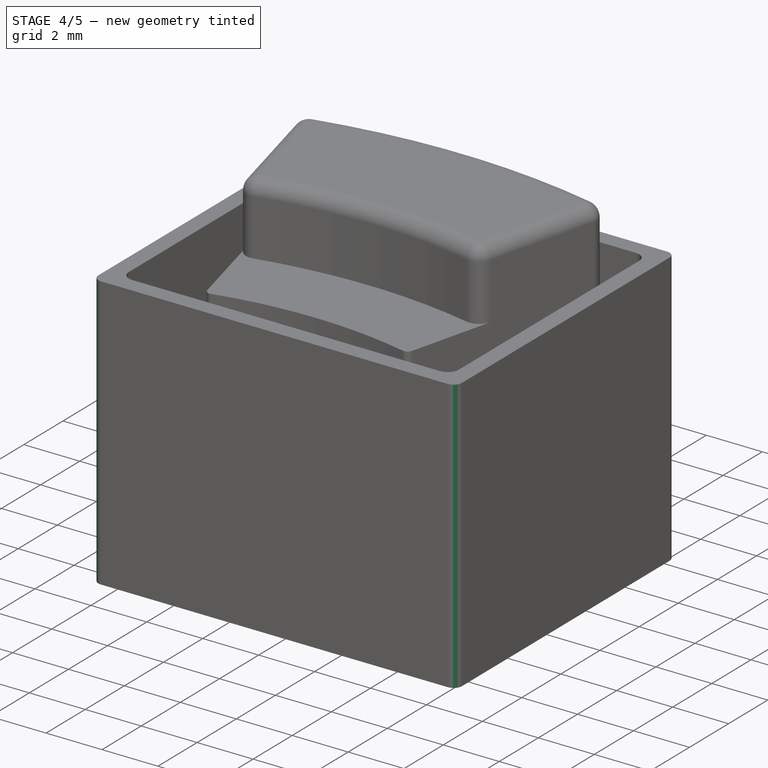
[diagram: stage 4 of 5 — iso view after this stage's code; geometry added in this stage tinted green]
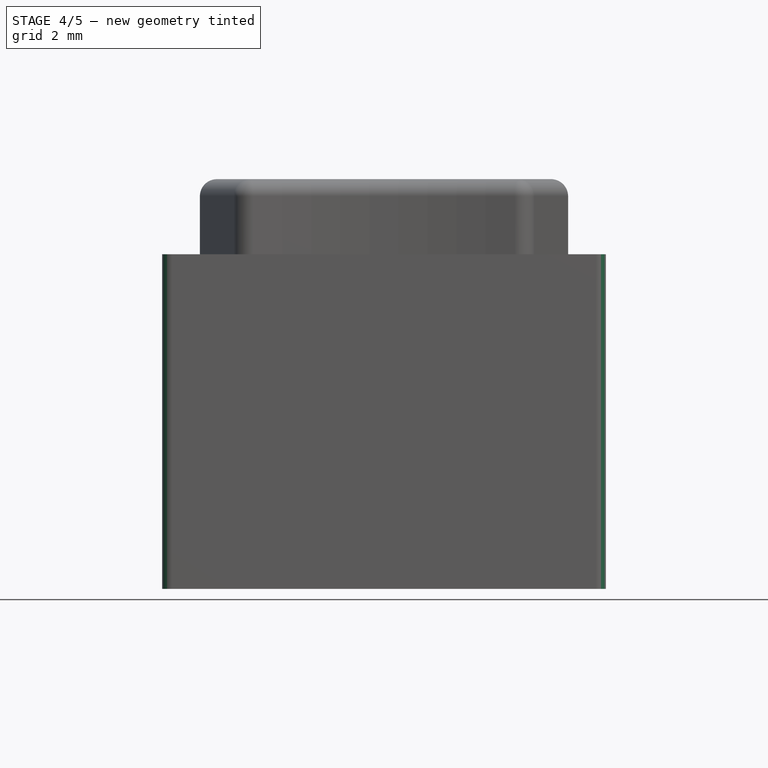
[diagram: stage 4 of 5 — front view after this stage's code; geometry added in this stage tinted green]
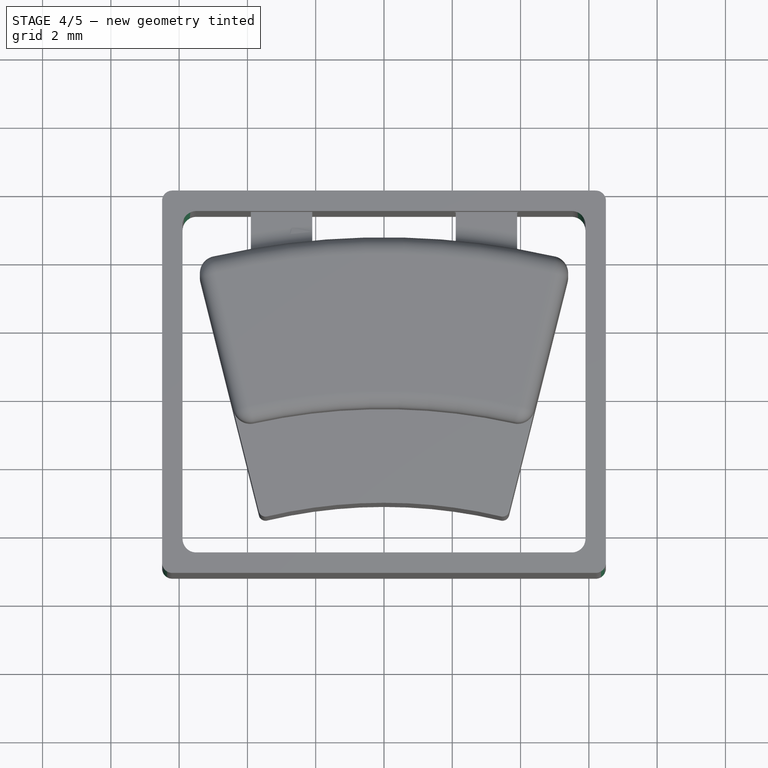
[diagram: stage 4 of 5 — top view after this stage's code; geometry added in this stage tinted green]
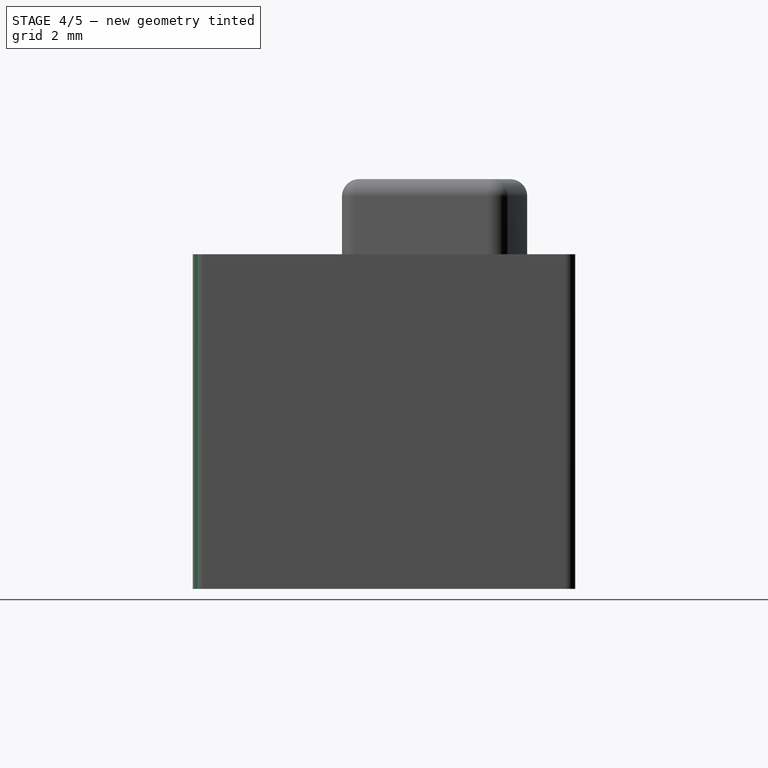
[diagram: stage 4 of 5 — right view after this stage's code; geometry added in this stage tinted green]
FEATURE [PartDesign::Fillet] Fillet005
  Base = -> Pad003 [Edge1,Edge8,Edge5,Edge2]
  BaseFeature = -> Pad003
  Radius = 0.3
FEATURE [PartDesign::Fillet] Fillet006
  Base = -> Fillet005 [Edge33,Edge34,Edge35,Edge36]
  BaseFeature = -> Fillet005
  Radius = 0.4
FEATURE [Sketcher::SketchObject] Sketch006
  MapMode = 5
  Placement = pos=(0,4,0) rot=(0,0.707107,0.707107;3.14159rad)
  Support = -> [Fillet006]
  sketch-geometry (5):
    g0: LineSegment StartX=-3.925 StartY=8.425 StartZ=0 EndX=-2.075 EndY=8.425 EndZ=0
    g1: LineSegment StartX=-2.075 StartY=8.425 StartZ=0 EndX=-2.075 EndY=7.475 EndZ=0
    g2: LineSegment StartX=-2.075 StartY=7.475 StartZ=0 EndX=-3.925 EndY=7.475 EndZ=0
    g3: LineSegment StartX=-3.925 StartY=7.475 StartZ=0 EndX=-3.925 EndY=8.425 EndZ=0
    g4: GeomPoint X=-3 Y=7.95 Z=0
  constraints (13):
    c: Coincident(g0,g1)
    c: Coincident(g1,g2)
    c: Coincident(g2,g3)
    c: Coincident(g3,g0)
    c: Horizontal(g0)
    c: Horizontal(g2)
    c: Vertical(g1)
    c: Vertical(g3)
    c: DistanceY(g1,g1) = 0.95
    c: DistanceX(g0,g0) = 1.85
    c: Symmetric(g0,g1,g4)
    c: DistanceX(g4,g-1) = 3
    c: DistanceY(g-1,g4) = 7.95
FEATURE [PartDesign::Pocket] Pocket002
  BaseFeature = -> Fillet006
  Length = 5
  Length2 = 100
  Profile = -> Sketch006
  Type = 2
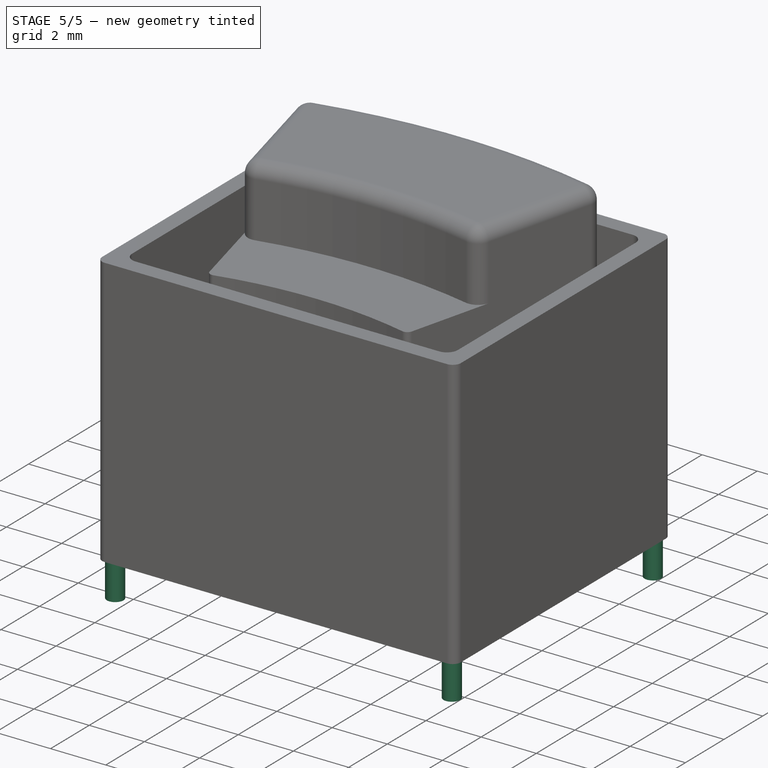
[diagram: stage 5 of 5 — iso view after this stage's code; geometry added in this stage tinted green]
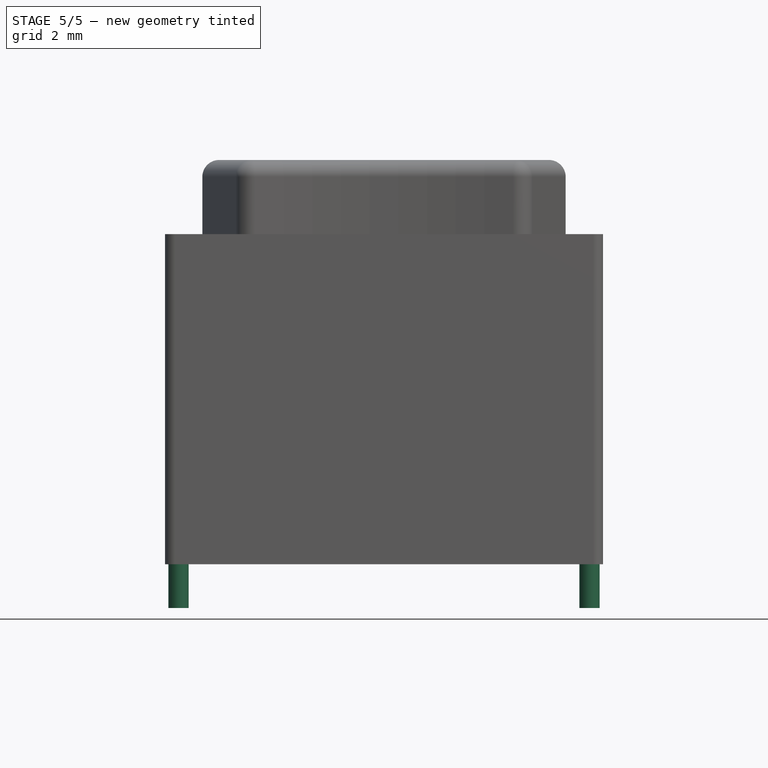
[diagram: stage 5 of 5 — front view after this stage's code; geometry added in this stage tinted green]
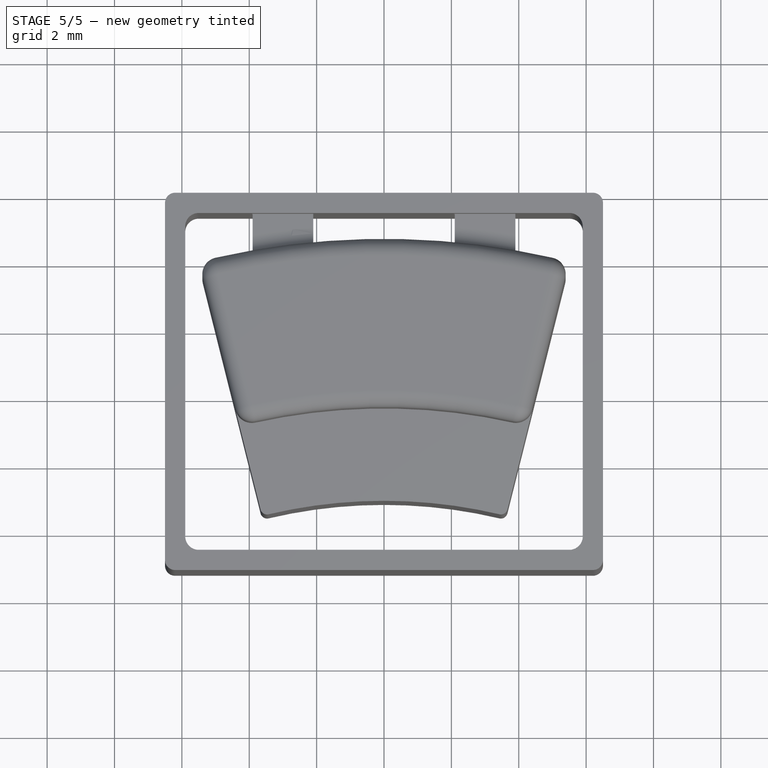
[diagram: stage 5 of 5 — top view after this stage's code; geometry added in this stage tinted green]
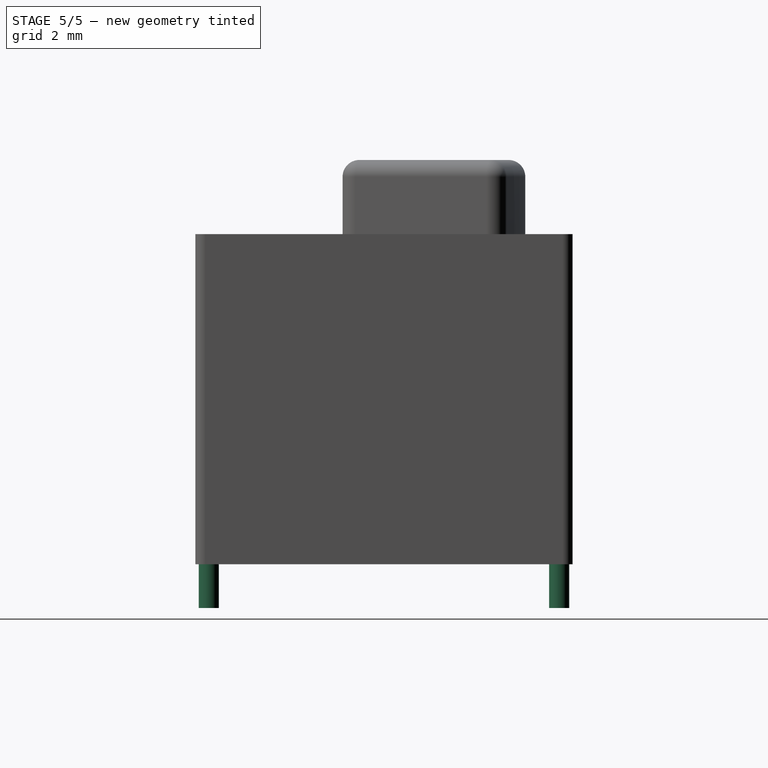
[diagram: stage 5 of 5 — right view after this stage's code; geometry added in this stage tinted green]
FEATURE [PartDesign::Mirrored] Mirrored001
  BaseFeature = -> Pocket002
  MirrorPlane = -> Sketch006 [V_Axis]
  Originals = -> [Pocket002]
FEATURE [PartDesign::Fillet] Fillet007
  Base = -> Mirrored001 [Edge68,Edge67,Edge70,Edge69,Edge71,Edge72,Edge66,Edge65]
  BaseFeature = -> Mirrored001
  Radius = 0.13
FEATURE [Sketcher::SketchObject] Sketch007
  ExternalGeometry = -> [Fillet007]
  MapMode = 5
  Placement = pos=(0,0,0) rot=(1,0,0;3.14159rad)
  Support = -> [Fillet007]
  sketch-geometry (13):
    g0: LineSegment [constr] StartX=-6.41213 StartY=7.11213 StartZ=0 EndX=-5.5 EndY=6.2 EndZ=0
    g1: LineSegment [constr] StartX=6.41213 StartY=7.11213 StartZ=0 EndX=5.5 EndY=6.2 EndZ=0
    g2: LineSegment [constr] StartX=-5.5 StartY=-3 StartZ=0 EndX=-6.41213 EndY=-3.91213 EndZ=0
    g3: LineSegment [constr] StartX=5.5 StartY=-3 StartZ=0 EndX=6.41213 EndY=-3.91213 EndZ=0
    g4: Circle CenterX=-6.1 CenterY=6.8 CenterZ=0 NormalX=0 NormalY=0 NormalZ=1 AngleXU=0 Radius=0.3
    g5: Circle CenterX=6.1 CenterY=6.8 CenterZ=0 NormalX=0 NormalY=0 NormalZ=1 AngleXU=0 Radius=0.3
    g6: Circle CenterX=-6.1 CenterY=-3.6 CenterZ=0 NormalX=0 NormalY=0 NormalZ=1 AngleXU=0 Radius=0.3
    g7: Circle CenterX=6.1 CenterY=-3.6 CenterZ=0 NormalX=0 NormalY=0 NormalZ=1 AngleXU=0 Radius=0.3
    g8: LineSegment [constr] StartX=6.1 StartY=6.8 StartZ=0 EndX=6.2 EndY=6.9 EndZ=0
    g9: LineSegment [constr] StartX=-6.1 StartY=7.2 StartZ=0 EndX=-6.1 EndY=6.8 EndZ=0
    g10: LineSegment [constr] StartX=6.1 StartY=-3.6 StartZ=0 EndX=6.1 EndY=-4 EndZ=0
    g11: LineSegment [constr] StartX=-6.1 StartY=-3.6 StartZ=0 EndX=-6.1 EndY=-4 EndZ=0
    g12: LineSegment [constr] StartX=6.1 StartY=6.8 StartZ=0 EndX=6.1 EndY=7.2 EndZ=0
  constraints (38):
    c: PointOnObject(g0,g-3)
    c: Coincident(g0,g-4)
    c: PointOnObject(g-3,g0)
    c: PointOnObject(g-6,g1)
    c: Coincident(g-5,g1)
    c: Coincident(g3,g-7)
    c: Coincident(g2,g-9)
    c: PointOnObject(g2,g-10)
    c: PointOnObject(g3,g-8)
    c: PointOnObject(g1,g-6)
    c: PointOnObject(g-8,g3)
    c: PointOnObject(g-10,g2)
    c: PointOnObject(g4,g0)
    c: Diameter(g4) = 0.6
    c: PointOnObject(g5,g1)
    c: PointOnObject(g6,g2)
    c: PointOnObject(g7,g3)
    c: Equal(g7,g6)
    c: Equal(g4,g7)
    c: Equal(g5,g4)
    c: Coincident(g8,g5)
    c: Coincident(g8,g-6)
    c: DistanceY(g-8,g7) = 0.4
    c: PointOnObject(g9,g-12)
    c: Coincident(g9,g4)
    c: Perpendicular(g9,g-12)
    c: Coincident(g10,g7)
    c: PointOnObject(g10,g-11)
    c: Vertical(g10)
    c: Equal(g10,g9)
    c: Coincident(g11,g6)
    c: PointOnObject(g11,g-11)
    c: Vertical(g11)
    c: Equal(g11,g10)
    c: Coincident(g12,g5)
    c: PointOnObject(g12,g-12)
    c: Perpendicular(g-12,g12)
    c: Equal(g12,g10)
FEATURE [PartDesign::Pad] Pad004
  BaseFeature = -> Fillet007
  Length = 1.3
  Length2 = 100
  Profile = -> Sketch007
  Type = 0
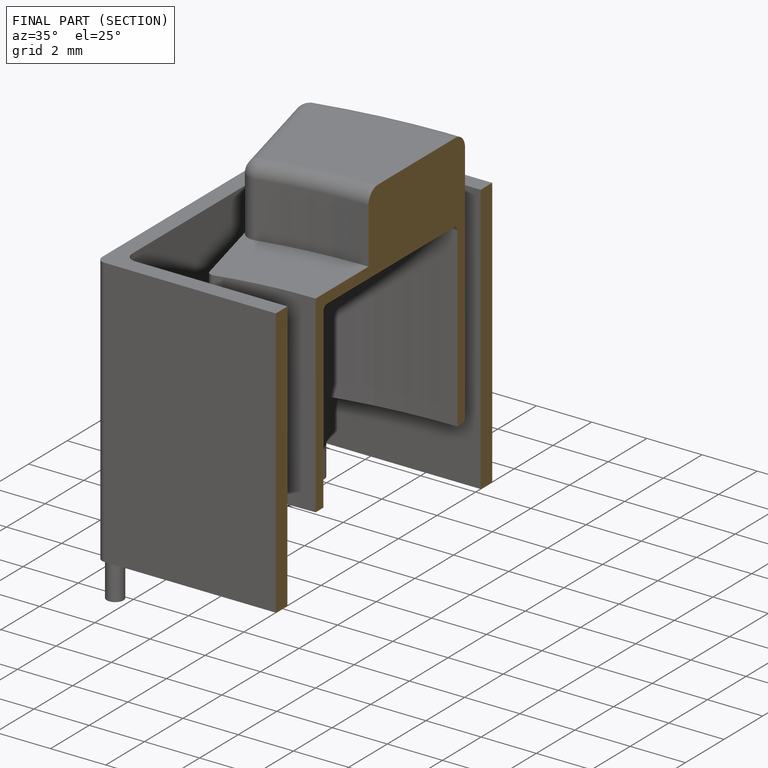
[diagram: finished part — half-section view (interior)]
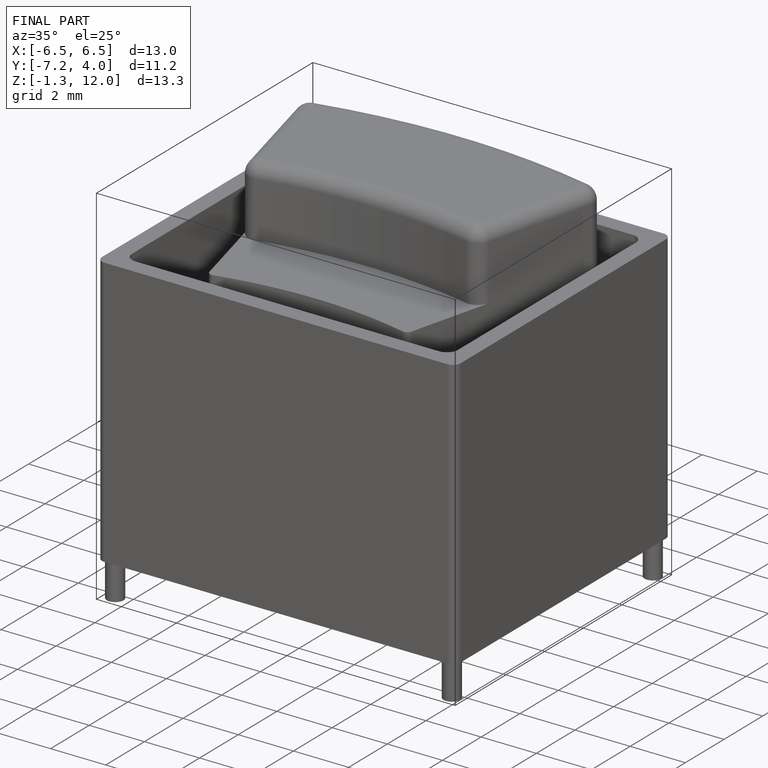
[diagram: finished part — iso view with bounding-box wireframe]
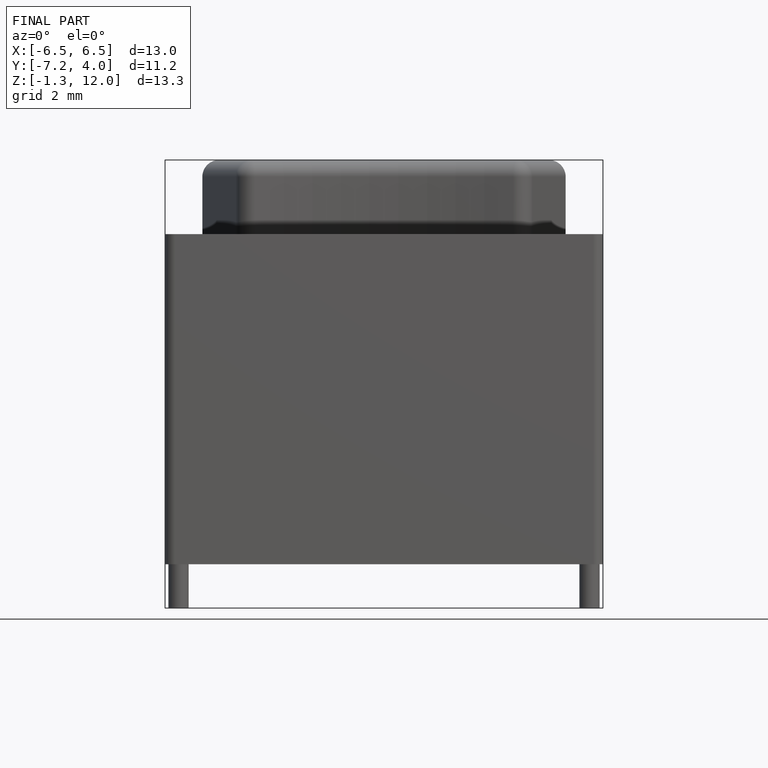
[diagram: finished part — front view with bounding-box wireframe]
